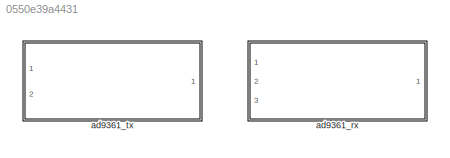
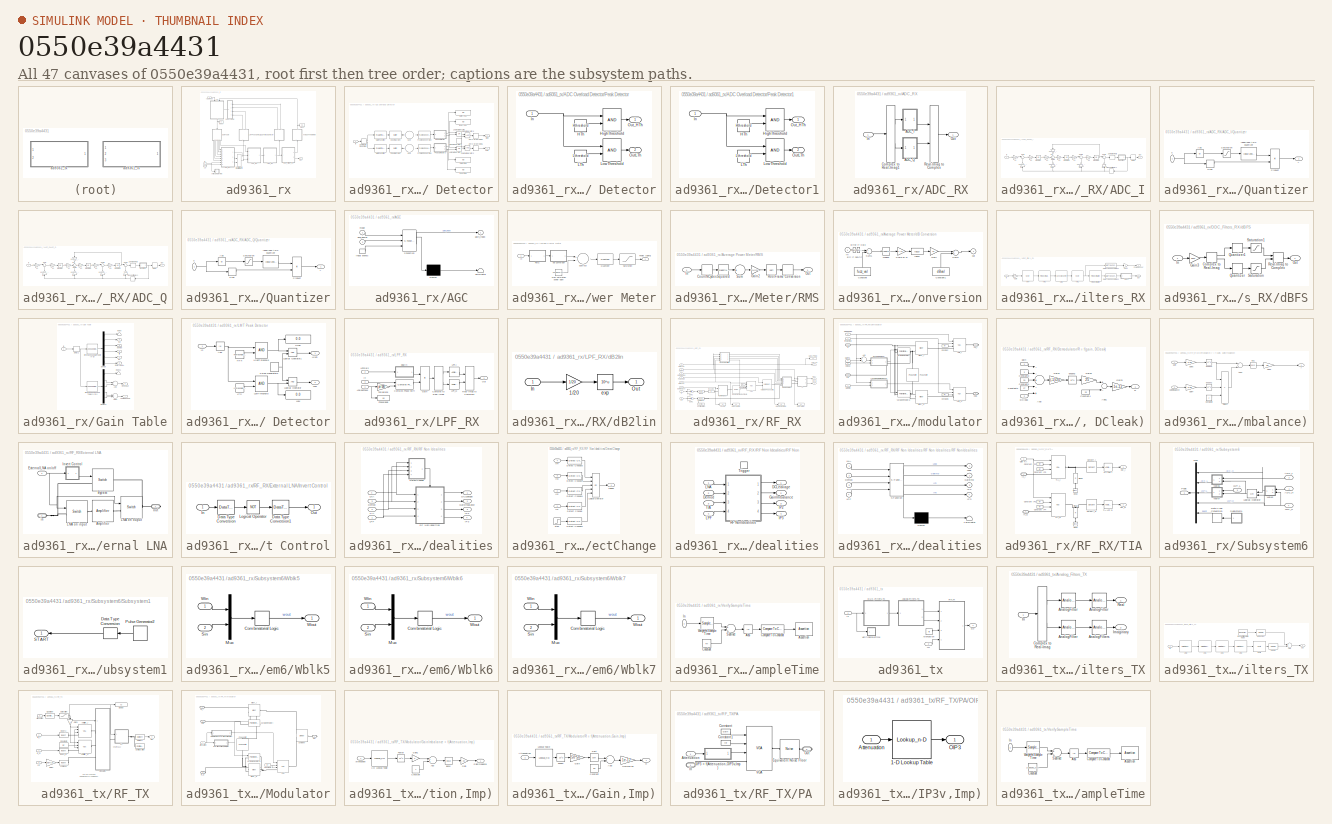
[diagram: thumbnail index - all 47 canvases of the model, root first then tree order]
MODEL slx_0550e39a4431
KIND library
CONFIG AbsTol = auto
CONFIG EnableMultiTasking = off
CONFIG FixedStep = auto
CONFIG MaxStep = auto
CONFIG MinStep = auto
CONFIG RelTol = 1e-3
CONFIG SampleTimeConstraint = Unconstrained
CONFIG Solver = VariableStepAuto
CONFIG SolverName = VariableStepAuto
CONFIG StartTime = 0.0
CONFIG StopTime = 10.0
BLOCK [SubSystem] ad9361_rx
  LoadFcn = ad9361_preload(bdroot,'rx')
  Ports = [3, 1]
  RequestExecContextInheritance = off
  UserDataPersistent = on
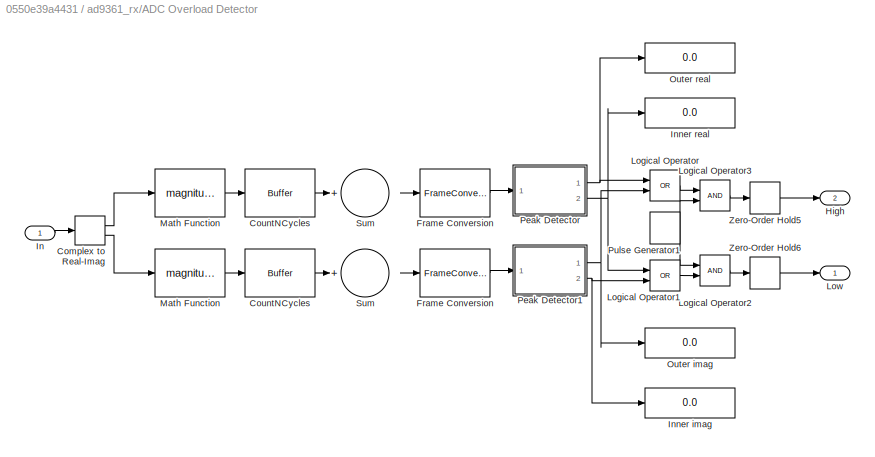
BLOCK [SubSystem] ad9361_rx/ADC Overload Detector
  Ports = [1, 2]
  RequestExecContextInheritance = off
BLOCK [ComplexToRealImag] ad9361_rx/ADC Overload Detector/Complex to Real-Imag
  Ports = [1, 2]
BLOCK [Buffer] ad9361_rx/ADC Overload Detector/CountNCycles
  N = Ncycles
BLOCK [Buffer] ad9361_rx/ADC Overload Detector/CountNCycles 
  N = Ncycles
BLOCK [FrameConversion] ad9361_rx/ADC Overload Detector/Frame Conversion
  OutFrame = Sample-based
  Ports = [1, 1]
BLOCK [FrameConversion] ad9361_rx/ADC Overload Detector/Frame Conversion 
  OutFrame = Sample-based
  Ports = [1, 1]
BLOCK [Outport] ad9361_rx/ADC Overload Detector/High
  IconDisplay = Port number
  Port = 2
BLOCK [Inport] ad9361_rx/ADC Overload Detector/In
  IconDisplay = Port number
BLOCK [Display] ad9361_rx/ADC Overload Detector/Inner imag
  Decimation = 1
  Ports = [1]
BLOCK [Display] ad9361_rx/ADC Overload Detector/Inner real
  Decimation = 1
  Ports = [1]
BLOCK [Logic] ad9361_rx/ADC Overload Detector/Logical Operator
  AllPortsSameDT = off
  Operator = OR
  OutDataTypeStr = boolean
  Ports = [2, 1]
BLOCK [Logic] ad9361_rx/ADC Overload Detector/Logical Operator1
  AllPortsSameDT = off
  Operator = OR
  OutDataTypeStr = boolean
  Ports = [2, 1]
BLOCK [Logic] ad9361_rx/ADC Overload Detector/Logical Operator2
  AllPortsSameDT = off
  OutDataTypeStr = boolean
  Ports = [2, 1]
BLOCK [Logic] ad9361_rx/ADC Overload Detector/Logical Operator3
  AllPortsSameDT = off
  OutDataTypeStr = boolean
  Ports = [2, 1]
BLOCK [Outport] ad9361_rx/ADC Overload Detector/Low
  IconDisplay = Port number
BLOCK [Math] ad9361_rx/ADC Overload Detector/Math Function
  Operator = magnitude^2
  Ports = [1, 1]
BLOCK [Math] ad9361_rx/ADC Overload Detector/Math Function 
  Operator = magnitude^2
  Ports = [1, 1]
BLOCK [Display] ad9361_rx/ADC Overload Detector/Outer imag
  Decimation = 1
  Ports = [1]
BLOCK [Display] ad9361_rx/ADC Overload Detector/Outer real
  Decimation = 1
  Ports = [1]
BLOCK [SubSystem] ad9361_rx/ADC Overload Detector/Peak Detector
  Ports = [1, 2]
  RequestExecContextInheritance = off
BLOCK [Constant] ad9361_rx/ADC Overload Detector/Peak Detector/HTh
  SampleTime = ad9361_rx_pars.Tadc*Ncycles
  Value = Hthreshold
BLOCK [RelationalOperator] ad9361_rx/ADC Overload Detector/Peak Detector/HighThreshold
  InputSameDT = off
  OutDataTypeStr = boolean
  Ports = [2, 1]
BLOCK [Inport] ad9361_rx/ADC Overload Detector/Peak Detector/In
  IconDisplay = Port number
BLOCK [Constant] ad9361_rx/ADC Overload Detector/Peak Detector/LTh
  SampleTime = ad9361_rx_pars.Tadc*Ncycles
  Value = Lthreshold
BLOCK [RelationalOperator] ad9361_rx/ADC Overload Detector/Peak Detector/LowThreshold
  InputSameDT = off
  OutDataTypeStr = boolean
  Ports = [2, 1]
BLOCK [Outport] ad9361_rx/ADC Overload Detector/Peak Detector/OutLTh
  IconDisplay = Port number
  Port = 2
BLOCK [Outport] ad9361_rx/ADC Overload Detector/Peak Detector/Out_HTh
  IconDisplay = Port number
BLOCK [SubSystem] ad9361_rx/ADC Overload Detector/Peak Detector1
  Ports = [1, 2]
  RequestExecContextInheritance = off
BLOCK [Constant] ad9361_rx/ADC Overload Detector/Peak Detector1/HTh
  SampleTime = ad9361_rx_pars.Tadc*Ncycles
  Value = Hthreshold
BLOCK [RelationalOperator] ad9361_rx/ADC Overload Detector/Peak Detector1/HighThreshold
  InputSameDT = off
  OutDataTypeStr = boolean
  Ports = [2, 1]
BLOCK [Inport] ad9361_rx/ADC Overload Detector/Peak Detector1/In
  IconDisplay = Port number
BLOCK [Constant] ad9361_rx/ADC Overload Detector/Peak Detector1/LTh
  SampleTime = ad9361_rx_pars.Tadc*Ncycles
  Value = Lthreshold
BLOCK [RelationalOperator] ad9361_rx/ADC Overload Detector/Peak Detector1/LowThreshold
  InputSameDT = off
  OutDataTypeStr = boolean
  Ports = [2, 1]
BLOCK [Outport] ad9361_rx/ADC Overload Detector/Peak Detector1/OutLTh
  IconDisplay = Port number
  Port = 2
BLOCK [Outport] ad9361_rx/ADC Overload Detector/Peak Detector1/Out_HTh
  IconDisplay = Port number
BLOCK [DiscretePulseGenerator] ad9361_rx/ADC Overload Detector/Pulse Generator1
  Ports = [0, 1]
  SampleTime = ad9361_rx_pars.Tadc*Ncycles
BLOCK [Sum] ad9361_rx/ADC Overload Detector/Sum
  InputSameDT = off
  Inputs = +
  OutDataTypeStr = Inherit: Inherit via internal rule
  Ports = [1, 1]
  SaturateOnIntegerOverflow = off
BLOCK [Sum] ad9361_rx/ADC Overload Detector/Sum 
  InputSameDT = off
  Inputs = +
  OutDataTypeStr = Inherit: Inherit via internal rule
  Ports = [1, 1]
  SaturateOnIntegerOverflow = off
BLOCK [ZeroOrderHold] ad9361_rx/ADC Overload Detector/Zero-Order Hold5
  SampleTime = Trf
BLOCK [ZeroOrderHold] ad9361_rx/ADC Overload Detector/Zero-Order Hold6
  SampleTime = Trf
BLOCK [SubSystem] ad9361_rx/ADC_RX
  Ports = [1, 1]
  RequestExecContextInheritance = off
BLOCK [SubSystem] ad9361_rx/ADC_RX/ADC_I
  Ports = [1, 1]
  RequestExecContextInheritance = off
BLOCK [Delay] ad9361_rx/ADC_RX/ADC_I/Delay
  DelayLength = 1
  InputPortMap = u0
  Ports = [1, 1]
BLOCK [Inport] ad9361_rx/ADC_RX/ADC_I/In
  IconDisplay = Port number
BLOCK [Integrator] ad9361_rx/ADC_RX/ADC_I/Integrator
  LimitOutput = on
  LowerSaturationLimit = -0.9
  Ports = [1, 1]
  UpperSaturationLimit = 0.9
BLOCK [Integrator] ad9361_rx/ADC_RX/ADC_I/Integrator1
  LimitOutput = on
  LowerSaturationLimit = -0.9
  Ports = [1, 1]
  UpperSaturationLimit = 0.9
BLOCK [Integrator] ad9361_rx/ADC_RX/ADC_I/Integrator2
  LimitOutput = on
  LowerSaturationLimit = -0.9
  Ports = [1, 1]
  UpperSaturationLimit = 0.9
BLOCK [Outport] ad9361_rx/ADC_RX/ADC_I/Out
  IconDisplay = Port number
BLOCK [SubSystem] ad9361_rx/ADC_RX/ADC_I/Quantizer
  Ports = [1, 1]
  RequestExecContextInheritance = off
BLOCK [Abs] ad9361_rx/ADC_RX/ADC_I/Quantizer/Abs
  SaturateOnIntegerOverflow = off
BLOCK [Reference] ad9361_rx/ADC_RX/ADC_I/Quantizer/Idealized ADC quantizer  REF=simulink_extras/Additional
Discrete/Idealized ADC quantizer
  AttributesFormatString = (settings: %<NumberOfConverterBits>-bit converter\nVmin: %<Vmin>, Vmax: %<Vmax>)
  Ports = [1, 1]
  SourceBlock = simulink_extras/Additional\nDiscrete/Idealized ADC quantizer
  SourceProductBaseCode = SL
  SourceProductName = Simulink
  SourceType = IdealADC
BLOCK [Product] ad9361_rx/ADC_RX/ADC_I/Quantizer/Product
  InputSameDT = off
  OutDataTypeStr = Inherit: Inherit via internal rule
  Ports = [2, 1]
  RndMeth = Floor
  SaturateOnIntegerOverflow = off
BLOCK [Saturate] ad9361_rx/ADC_RX/ADC_I/Quantizer/Saturation
  InputPortMap = u0
  Ports = [1, 1]
  UpperLimit = 0.41
BLOCK [Signum] ad9361_rx/ADC_RX/ADC_I/Quantizer/Sign
BLOCK [Inport] ad9361_rx/ADC_RX/ADC_I/Quantizer/u
  IconDisplay = Port number
BLOCK [Outport] ad9361_rx/ADC_RX/ADC_I/Quantizer/y
  IconDisplay = Port number
BLOCK [Sum] ad9361_rx/ADC_RX/ADC_I/Sum
  IconShape = round
  InputSameDT = off
  Inputs = |+-
  OutDataTypeStr = Inherit: Inherit via internal rule
  Ports = [2, 1]
  SaturateOnIntegerOverflow = off
BLOCK [Sum] ad9361_rx/ADC_RX/ADC_I/Sum1
  IconShape = round
  InputSameDT = off
  Inputs = |+-
  OutDataTypeStr = Inherit: Inherit via internal rule
  Ports = [2, 1]
  SaturateOnIntegerOverflow = off
BLOCK [Sum] ad9361_rx/ADC_RX/ADC_I/Sum4
  IconShape = round
  InputSameDT = off
  Inputs = -+-
  OutDataTypeStr = Inherit: Inherit via internal rule
  Ports = [3, 1]
  SaturateOnIntegerOverflow = off
BLOCK [Sum] ad9361_rx/ADC_RX/ADC_I/Sum5
  IconShape = round
  InputSameDT = off
  Inputs = |+-
  OutDataTypeStr = Inherit: Inherit via internal rule
  Ports = [2, 1]
  SaturateOnIntegerOverflow = off
BLOCK [TransportDelay] ad9361_rx/ADC_RX/ADC_I/Transport Delay1
  DelayTime = ad9361_rx_pars.Tadc/2
  Ports = [1, 1]
BLOCK [ZeroOrderHold] ad9361_rx/ADC_RX/ADC_I/Zero-Order Hold
  SampleTime = ad9361_rx_pars.Tadc
BLOCK [Gain] ad9361_rx/ADC_RX/ADC_I/a1
  Gain = ad9361_rx_pars.BW_adc/(5e3*640e6)
  OutDataTypeStr = Inherit: Inherit via internal rule
  ParamDataTypeStr = Inherit: Inherit via internal rule
  SaturateOnIntegerOverflow = off
BLOCK [Gain] ad9361_rx/ADC_RX/ADC_I/a2
  Gain = ad9361_rx_pars.BW_adc/(5.2e3*640e6)
  OutDataTypeStr = Inherit: Inherit via internal rule
  ParamDataTypeStr = Inherit: Inherit via internal rule
  SaturateOnIntegerOverflow = off
BLOCK [Gain] ad9361_rx/ADC_RX/ADC_I/a3
  Gain = ad9361_rx_pars.BW_adc/(5e3*640e6)
  OutDataTypeStr = Inherit: Inherit via internal rule
  ParamDataTypeStr = Inherit: Inherit via internal rule
  SaturateOnIntegerOverflow = off
BLOCK [Gain] ad9361_rx/ADC_RX/ADC_I/b2
  Gain = ad9361_rx_pars.BW_adc*1024/(4*((ad9361_rx_pars.BW_adc/(2*ad9361_rx_pars.Fpass))^2)*108e3*640e6)
  OutDataTypeStr = Inherit: Inherit via internal rule
  ParamDataTypeStr = Inherit: Inherit via internal rule
  SaturateOnIntegerOverflow = off
BLOCK [Gain] ad9361_rx/ADC_RX/ADC_I/d1
  Gain = 1/1040e-15
  OutDataTypeStr = Inherit: Inherit via internal rule
  ParamDataTypeStr = Inherit: Inherit via internal rule
  SaturateOnIntegerOverflow = off
BLOCK [Gain] ad9361_rx/ADC_RX/ADC_I/d2
  Gain = 1/536e-15
  OutDataTypeStr = Inherit: Inherit via internal rule
  ParamDataTypeStr = Inherit: Inherit via internal rule
  SaturateOnIntegerOverflow = off
BLOCK [Gain] ad9361_rx/ADC_RX/ADC_I/d3
  Gain = 1/281e-15
  OutDataTypeStr = Inherit: Inherit via internal rule
  ParamDataTypeStr = Inherit: Inherit via internal rule
  SaturateOnIntegerOverflow = off
BLOCK [Gain] ad9361_rx/ADC_RX/ADC_I/k1
  Gain = ad9361_rx_pars.BW_adc*32e-6/640e6
  OutDataTypeStr = Inherit: Inherit via internal rule
  ParamDataTypeStr = Inherit: Inherit via internal rule
  SaturateOnIntegerOverflow = off
BLOCK [Gain] ad9361_rx/ADC_RX/ADC_I/k2
  Gain = ad9361_rx_pars.BW_adc*30.3e-6/640e6
  OutDataTypeStr = Inherit: Inherit via internal rule
  ParamDataTypeStr = Inherit: Inherit via internal rule
  SaturateOnIntegerOverflow = off
BLOCK [Gain] ad9361_rx/ADC_RX/ADC_I/k3
  Gain = ad9361_rx_pars.BW_adc*30.3e-6/640e6
  OutDataTypeStr = Inherit: Inherit via internal rule
  ParamDataTypeStr = Inherit: Inherit via internal rule
  SaturateOnIntegerOverflow = off
BLOCK [Gain] ad9361_rx/ADC_RX/ADC_I/k4
  Gain = 72e-3
  OutDataTypeStr = Inherit: Inherit via internal rule
  ParamDataTypeStr = Inherit: Inherit via internal rule
  SaturateOnIntegerOverflow = off
BLOCK [SubSystem] ad9361_rx/ADC_RX/ADC_Q
  Ports = [1, 1]
  RequestExecContextInheritance = off
BLOCK [Delay] ad9361_rx/ADC_RX/ADC_Q/Delay
  DelayLength = 1
  InputPortMap = u0
  Ports = [1, 1]
BLOCK [Inport] ad9361_rx/ADC_RX/ADC_Q/In
  IconDisplay = Port number
BLOCK [Integrator] ad9361_rx/ADC_RX/ADC_Q/Integrator
  LimitOutput = on
  LowerSaturationLimit = -0.9
  Ports = [1, 1]
  UpperSaturationLimit = 0.9
BLOCK [Integrator] ad9361_rx/ADC_RX/ADC_Q/Integrator1
  LimitOutput = on
  LowerSaturationLimit = -0.9
  Ports = [1, 1]
  UpperSaturationLimit = 0.9
BLOCK [Integrator] ad9361_rx/ADC_RX/ADC_Q/Integrator2
  LimitOutput = on
  LowerSaturationLimit = -0.9
  Ports = [1, 1]
  UpperSaturationLimit = 0.9
BLOCK [Outport] ad9361_rx/ADC_RX/ADC_Q/Out
  IconDisplay = Port number
BLOCK [SubSystem] ad9361_rx/ADC_RX/ADC_Q/Quantizer
  Ports = [1, 1]
  RequestExecContextInheritance = off
BLOCK [Abs] ad9361_rx/ADC_RX/ADC_Q/Quantizer/Abs
  SaturateOnIntegerOverflow = off
BLOCK [Reference] ad9361_rx/ADC_RX/ADC_Q/Quantizer/Idealized ADC quantizer  REF=simulink_extras/Additional
Discrete/Idealized ADC quantizer
  AttributesFormatString = (settings: %<NumberOfConverterBits>-bit converter\nVmin: %<Vmin>, Vmax: %<Vmax>)
  Ports = [1, 1]
  SourceBlock = simulink_extras/Additional\nDiscrete/Idealized ADC quantizer
  SourceProductBaseCode = SL
  SourceProductName = Simulink
  SourceType = IdealADC
BLOCK [Product] ad9361_rx/ADC_RX/ADC_Q/Quantizer/Product
  InputSameDT = off
  OutDataTypeStr = Inherit: Inherit via internal rule
  Ports = [2, 1]
  RndMeth = Floor
  SaturateOnIntegerOverflow = off
BLOCK [Saturate] ad9361_rx/ADC_RX/ADC_Q/Quantizer/Saturation
  InputPortMap = u0
  Ports = [1, 1]
  UpperLimit = 0.41
BLOCK [Signum] ad9361_rx/ADC_RX/ADC_Q/Quantizer/Sign
BLOCK [Inport] ad9361_rx/ADC_RX/ADC_Q/Quantizer/u
  IconDisplay = Port number
BLOCK [Outport] ad9361_rx/ADC_RX/ADC_Q/Quantizer/y
  IconDisplay = Port number
BLOCK [Sum] ad9361_rx/ADC_RX/ADC_Q/Sum
  IconShape = round
  InputSameDT = off
  Inputs = |+-
  OutDataTypeStr = Inherit: Inherit via internal rule
  Ports = [2, 1]
  SaturateOnIntegerOverflow = off
BLOCK [Sum] ad9361_rx/ADC_RX/ADC_Q/Sum1
  IconShape = round
  InputSameDT = off
  Inputs = |+-
  OutDataTypeStr = Inherit: Inherit via internal rule
  Ports = [2, 1]
  SaturateOnIntegerOverflow = off
BLOCK [Sum] ad9361_rx/ADC_RX/ADC_Q/Sum4
  IconShape = round
  InputSameDT = off
  Inputs = -+-
  OutDataTypeStr = Inherit: Inherit via internal rule
  Ports = [3, 1]
  SaturateOnIntegerOverflow = off
BLOCK [Sum] ad9361_rx/ADC_RX/ADC_Q/Sum5
  IconShape = round
  InputSameDT = off
  Inputs = |+-
  OutDataTypeStr = Inherit: Inherit via internal rule
  Ports = [2, 1]
  SaturateOnIntegerOverflow = off
BLOCK [TransportDelay] ad9361_rx/ADC_RX/ADC_Q/Transport Delay1
  DelayTime = ad9361_rx_pars.Tadc/2
  Ports = [1, 1]
BLOCK [ZeroOrderHold] ad9361_rx/ADC_RX/ADC_Q/Zero-Order Hold
  SampleTime = ad9361_rx_pars.Tadc
BLOCK [Gain] ad9361_rx/ADC_RX/ADC_Q/a1
  Gain = ad9361_rx_pars.BW_adc/(5e3*640e6)
  OutDataTypeStr = Inherit: Inherit via internal rule
  ParamDataTypeStr = Inherit: Inherit via internal rule
  SaturateOnIntegerOverflow = off
BLOCK [Gain] ad9361_rx/ADC_RX/ADC_Q/a2
  Gain = ad9361_rx_pars.BW_adc/(5.2e3*640e6)
  OutDataTypeStr = Inherit: Inherit via internal rule
  ParamDataTypeStr = Inherit: Inherit via internal rule
  SaturateOnIntegerOverflow = off
BLOCK [Gain] ad9361_rx/ADC_RX/ADC_Q/a3
  Gain = ad9361_rx_pars.BW_adc/(5e3*640e6)
  OutDataTypeStr = Inherit: Inherit via internal rule
  ParamDataTypeStr = Inherit: Inherit via internal rule
  SaturateOnIntegerOverflow = off
BLOCK [Gain] ad9361_rx/ADC_RX/ADC_Q/b2
  Gain = ad9361_rx_pars.BW_adc*1024/(4*((ad9361_rx_pars.BW_adc/(2*ad9361_rx_pars.Fpass))^2)*108e3*640e6)
  OutDataTypeStr = Inherit: Inherit via internal rule
  ParamDataTypeStr = Inherit: Inherit via internal rule
  SaturateOnIntegerOverflow = off
BLOCK [Gain] ad9361_rx/ADC_RX/ADC_Q/d1
  Gain = 1/1040e-15
  OutDataTypeStr = Inherit: Inherit via internal rule
  ParamDataTypeStr = Inherit: Inherit via internal rule
  SaturateOnIntegerOverflow = off
BLOCK [Gain] ad9361_rx/ADC_RX/ADC_Q/d2
  Gain = 1/536e-15
  OutDataTypeStr = Inherit: Inherit via internal rule
  ParamDataTypeStr = Inherit: Inherit via internal rule
  SaturateOnIntegerOverflow = off
BLOCK [Gain] ad9361_rx/ADC_RX/ADC_Q/d3
  Gain = 1/281e-15
  OutDataTypeStr = Inherit: Inherit via internal rule
  ParamDataTypeStr = Inherit: Inherit via internal rule
  SaturateOnIntegerOverflow = off
BLOCK [Gain] ad9361_rx/ADC_RX/ADC_Q/k1
  Gain = ad9361_rx_pars.BW_adc*32e-6/640e6
  OutDataTypeStr = Inherit: Inherit via internal rule
  ParamDataTypeStr = Inherit: Inherit via internal rule
  SaturateOnIntegerOverflow = off
BLOCK [Gain] ad9361_rx/ADC_RX/ADC_Q/k2
  Gain = ad9361_rx_pars.BW_adc*30.3e-6/640e6
  OutDataTypeStr = Inherit: Inherit via internal rule
  ParamDataTypeStr = Inherit: Inherit via internal rule
  SaturateOnIntegerOverflow = off
BLOCK [Gain] ad9361_rx/ADC_RX/ADC_Q/k3
  Gain = ad9361_rx_pars.BW_adc*30.3e-6/640e6
  OutDataTypeStr = Inherit: Inherit via internal rule
  ParamDataTypeStr = Inherit: Inherit via internal rule
  SaturateOnIntegerOverflow = off
BLOCK [Gain] ad9361_rx/ADC_RX/ADC_Q/k4
  Gain = 72e-3
  OutDataTypeStr = Inherit: Inherit via internal rule
  ParamDataTypeStr = Inherit: Inherit via internal rule
  SaturateOnIntegerOverflow = off
BLOCK [ComplexToRealImag] ad9361_rx/ADC_RX/Complex to Real-Imag1
  Ports = [1, 2]
BLOCK [Inport] ad9361_rx/ADC_RX/In
  IconDisplay = Port number
BLOCK [Outport] ad9361_rx/ADC_RX/Out
  IconDisplay = Port number
BLOCK [RealImagToComplex] ad9361_rx/ADC_RX/Real-Imag to Complex
  Ports = [2, 1]
BLOCK [SubSystem] ad9361_rx/AGC
  ErrorFcn = Stateflow.Translate.translate
  PermitHierarchicalResolution = ExplicitOnly
  Ports = [2, 1, 0, 1]
  RequestExecContextInheritance = off
  SFBlockType = Chart
  TreatAsAtomicUnit = on
BLOCK [Demux] ad9361_rx/AGC/ Demux 
  Outputs = 1
  Ports = [1, 1]
BLOCK [S-Function] ad9361_rx/AGC/ SFunction 
  EnableBusSupport = off
  FunctionName = sf_sfun
  Parameters = ADC_G_dec_fast,AGC_G_dec_fast,AGC_G_dec_slow,AGC_G_inc_fast,AGC_G_inc_slow,AGC_attack_delay,AGC_lock_level,C,DecPowerMeasDuration,EnableGainIncAfterLock,EnableIncrGain,EnergyDetectCount,EnergyLost,FIR_Ts,GainLockExitCount,GainOffset,GainReset,IncrTime,LMT_G_dec_fast,LowPower,ManualGainIndex,Max_Increase,N_ADC_H,N_LMT_H,Overrange,PT_H,PT_HH,PT_L,PT_LL,PeakOverLoadWait,PostLockStepSize,PowerMeasDura...<+44ch>
  PortCounts = [3 2]
  Ports = [3, 2]
  SFcnIsStateOwnerBlock = off
  SFunctionDeploymentMode = off
  Tag = Stateflow S-Function adi_ad9361_models 5
BLOCK [Terminator] ad9361_rx/AGC/ Terminator 
BLOCK [Inport] ad9361_rx/AGC/avg_power
  IconDisplay = Port number
  Port = 2
BLOCK [Outport] ad9361_rx/AGC/gain_index
  IconDisplay = Port number
BLOCK [TriggerPort] ad9361_rx/AGC/input events
  Ports = [0, 1]
  ShowOutputPort = on
  StatesWhenEnabling = held
  TriggerType = either
  VariantControl = Variant
BLOCK [Inport] ad9361_rx/AGC/mode
  IconDisplay = Port number
BLOCK [Inport] ad9361_rx/AGCMode
  IconDisplay = Port number
  Port = 3
BLOCK [SubSystem] ad9361_rx/Average Power Meter
  Ports = [1, 1]
  RequestExecContextInheritance = off
BLOCK [Inport] ad9361_rx/Average Power Meter/In
  IconDisplay = Port number
BLOCK [Constant] ad9361_rx/Average Power Meter/Max saturation power dBm
  Value = 20*log10(4)+30
BLOCK [Outport] ad9361_rx/Average Power Meter/Power [dBFS]
  IconDisplay = Port number
BLOCK [Quantizer] ad9361_rx/Average Power Meter/Quantizer
BLOCK [SubSystem] ad9361_rx/Average Power Meter/RMS
  Ports = [1, 1]
  RequestExecContextInheritance = off
BLOCK [Buffer] ad9361_rx/Average Power Meter/RMS/CountNCycles
  N = Ncycles
BLOCK [FrameConversion] ad9361_rx/Average Power Meter/RMS/Frame Conversion
  OutFrame = Sample-based
  Ports = [1, 1]
BLOCK [Gain] ad9361_rx/Average Power Meter/RMS/Gain2
  Gain = 1/Ncycles
  OutDataTypeStr = Inherit: Inherit via internal rule
  ParamDataTypeStr = Inherit: Inherit via internal rule
  SaturateOnIntegerOverflow = off
BLOCK [Inport] ad9361_rx/Average Power Meter/RMS/In
  IconDisplay = Port number
BLOCK [Outport] ad9361_rx/Average Power Meter/RMS/Out
  IconDisplay = Port number
BLOCK [Sqrt] ad9361_rx/Average Power Meter/RMS/Root
BLOCK [Math] ad9361_rx/Average Power Meter/RMS/Squared
  Operator = magnitude^2
  Ports = [1, 1]
BLOCK [Sum] ad9361_rx/Average Power Meter/RMS/Sum
  InputSameDT = off
  Inputs = +
  OutDataTypeStr = Inherit: Inherit via internal rule
  Ports = [1, 1]
  SaturateOnIntegerOverflow = off
BLOCK [Saturate] ad9361_rx/Average Power Meter/Saturation
  InputPortMap = u0
  LowerLimit = -63.5
  Ports = [1, 1]
  UpperLimit = 0
BLOCK [Sum] ad9361_rx/Average Power Meter/Subtract
  InputSameDT = off
  Inputs = +-
  OutDataTypeStr = Inherit: Inherit via internal rule
  Ports = [2, 1]
  SaturateOnIntegerOverflow = off
BLOCK [SubSystem] ad9361_rx/Average Power Meter/dB Conversion
  Ports = [1, 1]
  RequestExecContextInheritance = off
BLOCK [Constant] ad9361_rx/Average Power Meter/dB Conversion/Constant
  OutDataTypeStr = Inherit: Inherit via back propagation
  Value = fuzz_val
BLOCK [Constant] ad9361_rx/Average Power Meter/dB Conversion/Constant1
  OutDataTypeStr = Inherit: Inherit via back propagation
  Value = dBval
BLOCK [Reference] ad9361_rx/Average Power Meter/dB Conversion/Err if non-flt  REF=dspsigattribs/Check Signal
Attributes
  Ports = [1, 1]
  SourceBlock = dspsigattribs/Check Signal\nAttributes
  SourceProductBaseCode = DS
  SourceProductName = DSP System Toolbox
  SourceType = Check Signal Attributes
BLOCK [Reference] ad9361_rx/Average Power Meter/dB Conversion/Error if Cplx  REF=dspsigattribs/Check Signal
Attributes
  Ports = [1, 1]
  SourceBlock = dspsigattribs/Check Signal\nAttributes
  SourceProductBaseCode = DS
  SourceProductName = DSP System Toolbox
  SourceType = Check Signal Attributes
BLOCK [Gain] ad9361_rx/Average Power Meter/dB Conversion/Gain
  Gain = 10
BLOCK [Math] ad9361_rx/Average Power Meter/dB Conversion/Magsq
  Operator = magnitude^2
  Ports = [1, 1]
BLOCK [Gain] ad9361_rx/Average Power Meter/dB Conversion/Scale by R
  Gain = 1./R
BLOCK [Sum] ad9361_rx/Average Power Meter/dB Conversion/Sum1
  Ports = [2, 1]
BLOCK [Sum] ad9361_rx/Average Power Meter/dB Conversion/Sum2
  Ports = [2, 1]
BLOCK [Inport] ad9361_rx/Average Power Meter/dB Conversion/in
  IconDisplay = Port number
BLOCK [Math] ad9361_rx/Average Power Meter/dB Conversion/log10
  Operator = log10
  Ports = [1, 1]
BLOCK [Outport] ad9361_rx/Average Power Meter/dB Conversion/out
  IconDisplay = Port number
  InitialOutput = 0
BLOCK [SubSystem] ad9361_rx/DDC_Filters_RX
  Ports = [1, 2]
  RequestExecContextInheritance = off
BLOCK [DataTypeConversion] ad9361_rx/DDC_Filters_RX/Data Type Conversion1
  OutDataTypeStr = double
  RndMeth = Floor
  SaturateOnIntegerOverflow = off
BLOCK [DataTypeConversion] ad9361_rx/DDC_Filters_RX/Data Type Conversion2
  OutDataTypeStr = double
  RndMeth = Floor
  SaturateOnIntegerOverflow = off
BLOCK [Reference] ad9361_rx/DDC_Filters_RX/FIR Decimation  REF=dspmlti4/FIR
Decimation
  Ports = [1, 1]
  SourceBlock = dspmlti4/FIR\nDecimation
  SourceProductBaseCode = DS
  SourceProductName = DSP System Toolbox
  SourceType = FIR Decimation
  UserDataPersistent = on
BLOCK [Gain] ad9361_rx/DDC_Filters_RX/Gain
  Gain = 1/4
  OutDataTypeStr = Inherit: Inherit via internal rule
  ParamDataTypeStr = Inherit: Inherit via internal rule
  SaturateOnIntegerOverflow = off
BLOCK [Gain] ad9361_rx/DDC_Filters_RX/Gain1
  Gain = 4
  OutDataTypeStr = Inherit: Inherit via internal rule
  ParamDataTypeStr = Inherit: Inherit via internal rule
  SaturateOnIntegerOverflow = off
BLOCK [Reference] ad9361_rx/DDC_Filters_RX/Hm1  REF=ad9361_private/Short
  Ports = [1, 1]
  SourceBlock = ad9361_private/Short
  SourceProductBaseCode = SIM_RF_TRANS
  SourceProductName = RF Blockset Models for Analog Devices RF Transceivers
BLOCK [Reference] ad9361_rx/DDC_Filters_RX/Hm2  REF=ad9361_private/ConvertAndFIR
  Ports = [1, 1]
  SourceBlock = ad9361_private/ConvertAndFIR
  SourceProductBaseCode = SIM_RF_TRANS
  SourceProductName = RF Blockset Models for Analog Devices RF Transceivers
BLOCK [Reference] ad9361_rx/DDC_Filters_RX/Hm3  REF=dspmlti4/FIR
Decimation
  Ports = [1, 1]
  SourceBlock = dspmlti4/FIR\nDecimation
  SourceProductBaseCode = DS
  SourceProductName = DSP System Toolbox
  SourceType = FIR Decimation
  UserDataPersistent = on
BLOCK [Reference] ad9361_rx/DDC_Filters_RX/Hm4  REF=ad9361_private/Short
  Ports = [1, 1]
  SourceBlock = ad9361_private/Short
  SourceProductBaseCode = SIM_RF_TRANS
  SourceProductName = RF Blockset Models for Analog Devices RF Transceivers
BLOCK [Inport] ad9361_rx/DDC_Filters_RX/In
  IconDisplay = Port number
BLOCK [Outport] ad9361_rx/DDC_Filters_RX/Out
  IconDisplay = Port number
  Port = 2
BLOCK [Outport] ad9361_rx/DDC_Filters_RX/PowerSensor
  IconDisplay = Port number
BLOCK [SubSystem] ad9361_rx/DDC_Filters_RX/dBFS
  Ports = [1, 1]
  RequestExecContextInheritance = off
BLOCK [ComplexToRealImag] ad9361_rx/DDC_Filters_RX/dBFS/Complex to Real-Imag
  Ports = [1, 2]
BLOCK [Gain] ad9361_rx/DDC_Filters_RX/dBFS/Gain3
  Gain = 2047
  OutDataTypeStr = Inherit: Inherit via internal rule
  ParamDataTypeStr = Inherit: Inherit via internal rule
  SaturateOnIntegerOverflow = off
BLOCK [Inport] ad9361_rx/DDC_Filters_RX/dBFS/In
  IconDisplay = Port number
BLOCK [Outport] ad9361_rx/DDC_Filters_RX/dBFS/Out
  IconDisplay = Port number
BLOCK [Quantizer] ad9361_rx/DDC_Filters_RX/dBFS/Quantizer
  QuantizationInterval = 1
BLOCK [Quantizer] ad9361_rx/DDC_Filters_RX/dBFS/Quantizer1
  QuantizationInterval = 1
BLOCK [RealImagToComplex] ad9361_rx/DDC_Filters_RX/dBFS/Real-Imag to Complex
  Ports = [2, 1]
BLOCK [Saturate] ad9361_rx/DDC_Filters_RX/dBFS/Saturation
  InputPortMap = u0
  LowerLimit = -2048
  Ports = [1, 1]
  UpperLimit = 2047
BLOCK [Saturate] ad9361_rx/DDC_Filters_RX/dBFS/Saturation1
  InputPortMap = u0
  LowerLimit = -2048
  Ports = [1, 1]
  UpperLimit = 2047
BLOCK [SubSystem] ad9361_rx/Gain Table
  Ports = [1, 7]
  RequestExecContextInheritance = off
BLOCK [Sum] ad9361_rx/Gain Table/Add
  InputSameDT = off
  OutDataTypeStr = Inherit: Inherit via internal rule
  Ports = [2, 1]
  SaturateOnIntegerOverflow = off
BLOCK [Sum] ad9361_rx/Gain Table/Add1
  InputSameDT = off
  OutDataTypeStr = Inherit: Inherit via internal rule
  Ports = [2, 1]
  SaturateOnIntegerOverflow = off
BLOCK [Outport] ad9361_rx/Gain Table/Analog phase
  IconDisplay = Port number
  Port = 7
BLOCK [Delay] ad9361_rx/Gain Table/Delay1
  DelayLength = 1
  InitialCondition = 76
  InputPortMap = u0
  Ports = [1, 1]
  SampleTime = Trf
BLOCK [Demux] ad9361_rx/Gain Table/Demux
  DisplayOption = bar
  Outputs = 6
  Ports = [1, 6]
BLOCK [Demux] ad9361_rx/Gain Table/Demux1
  DisplayOption = bar
  Outputs = 5
  Ports = [1, 5]
BLOCK [LookupNDDirect] ad9361_rx/Gain Table/Direct Lookup Gain Table (n-D)
  InputsSelectThisObjectFromTable = Vector
  Ports = [1, 1]
  Table = ADIGainTable'
BLOCK [LookupNDDirect] ad9361_rx/Gain Table/Direct Lookup Phase Table (n-D)1
  InputsSelectThisObjectFromTable = Vector
  Ports = [1, 1]
  Table = ADIPhaseTable'
BLOCK [Outport] ad9361_rx/Gain Table/External LNA
  IconDisplay = Port number
  Port = 5
BLOCK [Inport] ad9361_rx/Gain Table/In
  IconDisplay = Port number
BLOCK [Terminator] ad9361_rx/Gain Table/Index
BLOCK [Terminator] ad9361_rx/Gain Table/Index1
BLOCK [Outport] ad9361_rx/Gain Table/RF phase
  IconDisplay = Port number
  Port = 6
BLOCK [Outport] ad9361_rx/Gain Table/demod
  IconDisplay = Port number
  Port = 3
BLOCK [Outport] ad9361_rx/Gain Table/lna
  IconDisplay = Port number
  Port = 4
BLOCK [Outport] ad9361_rx/Gain Table/lpf
  IconDisplay = Port number
BLOCK [Outport] ad9361_rx/Gain Table/tia
  IconDisplay = Port number
  Port = 2
BLOCK [Inport] ad9361_rx/In
  IconDisplay = Port number
BLOCK [Display] ad9361_rx/Index 
  Decimation = 1
  Ports = [1]
BLOCK [SubSystem] ad9361_rx/LMT Peak Detector
  Ports = [1, 2]
  RequestExecContextInheritance = off
BLOCK [Abs] ad9361_rx/LMT Peak Detector/Abs
  SaturateOnIntegerOverflow = off
BLOCK [Constant] ad9361_rx/LMT Peak Detector/HTh
  Value = HThreshold*1e-3
BLOCK [Outport] ad9361_rx/LMT Peak Detector/High
  IconDisplay = Port number
  SampleTime = Trf
BLOCK [Display] ad9361_rx/LMT Peak Detector/High 
  Decimation = 1
  Ports = [1]
BLOCK [RelationalOperator] ad9361_rx/LMT Peak Detector/HighThreshold
  InputSameDT = off
  OutDataTypeStr = boolean
  Ports = [2, 1]
BLOCK [Inport] ad9361_rx/LMT Peak Detector/In
  IconDisplay = Port number
BLOCK [Constant] ad9361_rx/LMT Peak Detector/LTh
  Value = LThreshold*1e-3
BLOCK [Logic] ad9361_rx/LMT Peak Detector/Logical Operator
  AllPortsSameDT = off
  OutDataTypeStr = boolean
  Ports = [2, 1]
BLOCK [Logic] ad9361_rx/LMT Peak Detector/Logical Operator1
  AllPortsSameDT = off
  OutDataTypeStr = boolean
  Ports = [2, 1]
BLOCK [Outport] ad9361_rx/LMT Peak Detector/Low
  IconDisplay = Port number
  Port = 2
  SampleTime = Trf
BLOCK [Display] ad9361_rx/LMT Peak Detector/Low 
  Decimation = 1
  Ports = [1]
BLOCK [RelationalOperator] ad9361_rx/LMT Peak Detector/LowThreshold
  InputSameDT = off
  OutDataTypeStr = boolean
  Ports = [2, 1]
BLOCK [DiscretePulseGenerator] ad9361_rx/LMT Peak Detector/Pulse Generator2
  Ports = [0, 1]
  SampleTime = Trf
BLOCK [Inport] ad9361_rx/LO
  IconDisplay = Port number
  Port = 2
BLOCK [SubSystem] ad9361_rx/LPF_RX
  Ports = [3, 1]
  RequestExecContextInheritance = off
BLOCK [Inport] ad9361_rx/LPF_RX/AnalogPhase
  IconDisplay = Port number
BLOCK [Reference] ad9361_rx/LPF_RX/Complex Phase Shift  REF=commutil2/Complex Phase
Shift
  Ports = [2, 1]
  SourceBlock = commutil2/Complex Phase\nShift
  SourceProductBaseCode = CM
  SourceProductName = Communications Toolbox
  SourceType = Complex Phase Shift
BLOCK [ComplexToRealImag] ad9361_rx/LPF_RX/Complex to Real-Imag
  Ports = [1, 2]
BLOCK [Product] ad9361_rx/LPF_RX/Gain
  InputSameDT = off
  OutDataTypeStr = Inherit: Inherit via internal rule
  Ports = [2, 1]
  RndMeth = Floor
  SaturateOnIntegerOverflow = off
BLOCK [Inport] ad9361_rx/LPF_RX/In
  IconDisplay = Port number
  Port = 3
BLOCK [Inport] ad9361_rx/LPF_RX/LPFGain
  IconDisplay = Port number
  Port = 2
BLOCK [Reference] ad9361_rx/LPF_RX/LPF_I  REF=dsparch4/Analog
Filter Design
  Ports = [1, 1]
  SourceBlock = dsparch4/Analog\nFilter Design
  SourceProductBaseCode = DS
  SourceProductName = DSP System Toolbox
  SourceType = Analog Filter Design
BLOCK [Reference] ad9361_rx/LPF_RX/LPF_Q   REF=dsparch4/Analog
Filter Design
  Ports = [1, 1]
  SourceBlock = dsparch4/Analog\nFilter Design
  SourceProductBaseCode = DS
  SourceProductName = DSP System Toolbox
  SourceType = Analog Filter Design
BLOCK [Outport] ad9361_rx/LPF_RX/Out
  IconDisplay = Port number
BLOCK [Display] ad9361_rx/LPF_RX/Phase[deg]
  Decimation = 1
  Ports = [1]
BLOCK [RealImagToComplex] ad9361_rx/LPF_RX/Real-Imag to Complex1
  Ports = [2, 1]
BLOCK [Gain] ad9361_rx/LPF_RX/ToRadians
  Gain = pi/180
  OutDataTypeStr = Inherit: Inherit via internal rule
  ParamDataTypeStr = Inherit: Inherit via internal rule
  SaturateOnIntegerOverflow = off
BLOCK [SubSystem] ad9361_rx/LPF_RX/dB2lin
  Ports = [1, 1]
  RequestExecContextInheritance = off
BLOCK [Gain] ad9361_rx/LPF_RX/dB2lin/1//20
  Gain = 1/20
  OutDataTypeStr = Inherit: Inherit via internal rule
  ParamDataTypeStr = Inherit: Inherit via internal rule
  SaturateOnIntegerOverflow = off
BLOCK [Inport] ad9361_rx/LPF_RX/dB2lin/In
  IconDisplay = Port number
BLOCK [Outport] ad9361_rx/LPF_RX/dB2lin/Out
  IconDisplay = Port number
BLOCK [Math] ad9361_rx/LPF_RX/dB2lin/exp
  Operator = 10^u
  Ports = [1, 1]
BLOCK [Outport] ad9361_rx/Out
  IconDisplay = Port number
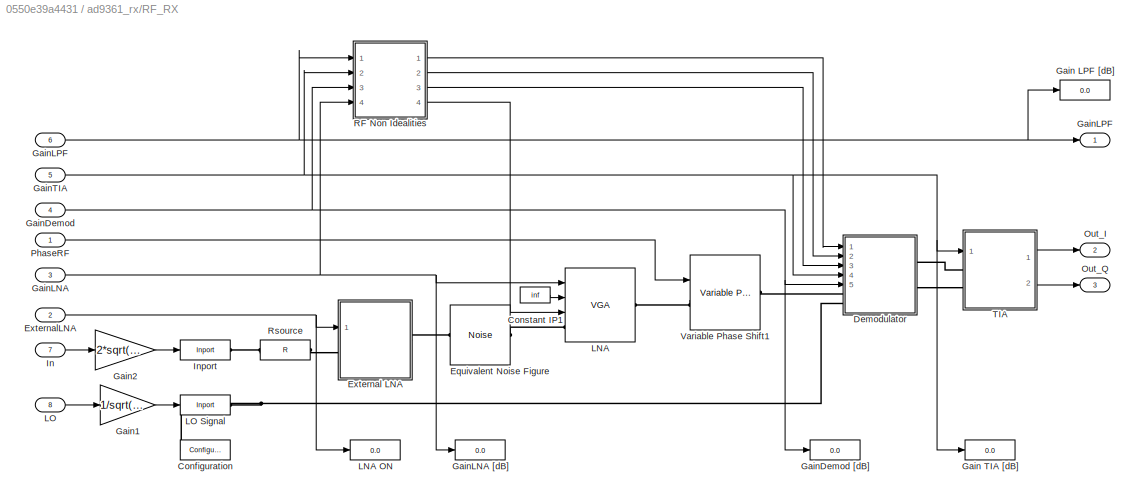
BLOCK [SubSystem] ad9361_rx/RF_RX
  Ports = [8, 3]
  RequestExecContextInheritance = off
BLOCK [Reference] ad9361_rx/RF_RX/Configuration  REF=simrfV2util1/Configuration
  Ports = [0, 0, 0, 0, 0, 1]
  SourceBlock = simrfV2util1/Configuration
  SourceProductBaseCode = RB
  SourceProductName = RF Blockset
  SourceType = Configuration
BLOCK [Constant] ad9361_rx/RF_RX/Constant IP1
  Value = inf
BLOCK [SubSystem] ad9361_rx/RF_RX/Demodulator
  Ports = [5, 0, 0, 0, 0, 2, 2]
  RequestExecContextInheritance = off
BLOCK [Sum] ad9361_rx/RF_RX/Demodulator/Add
  InputSameDT = off
  OutDataTypeStr = Inherit: Inherit via internal rule
  Ports = [2, 1]
  SaturateOnIntegerOverflow = off
BLOCK [Reference] ad9361_rx/RF_RX/Demodulator/Amp_I  REF=simrfV2elements/VGA
  Ports = [3, 0, 0, 0, 0, 1, 1]
  SourceBlock = simrfV2elements/VGA
  SourceProductBaseCode = RB
  SourceProductName = RF Blockset
  SourceType = VGA
BLOCK [Reference] ad9361_rx/RF_RX/Demodulator/Amp_Q  REF=simrfV2elements/VGA
  Ports = [3, 0, 0, 0, 0, 1, 1]
  SourceBlock = simrfV2elements/VGA
  SourceProductBaseCode = RB
  SourceProductName = RF Blockset
  SourceType = VGA
BLOCK [Constant] ad9361_rx/RF_RX/Demodulator/Constant
  Value = inf
BLOCK [Constant] ad9361_rx/RF_RX/Demodulator/Constant1
  Value = inf
BLOCK [Inport] ad9361_rx/RF_RX/Demodulator/DCleak
  IconDisplay = Port number
BLOCK [Inport] ad9361_rx/RF_RX/Demodulator/Gain Demod
  IconDisplay = Port number
  Port = 5
BLOCK [Inport] ad9361_rx/RF_RX/Demodulator/GainImb
  IconDisplay = Port number
  Port = 2
BLOCK [Inport] ad9361_rx/RF_RX/Demodulator/GainTIA
  IconDisplay = Port number
  Port = 4
BLOCK [Inport] ad9361_rx/RF_RX/Demodulator/IP2 Demod
  IconDisplay = Port number
  Port = 3
BLOCK [PMIOPort] ad9361_rx/RF_RX/Demodulator/In
  Side = Left
BLOCK [PMIOPort] ad9361_rx/RF_RX/Demodulator/LO
  Port = 4
  Side = Left
BLOCK [Reference] ad9361_rx/RF_RX/Demodulator/Mixer_I  REF=simrfV2elements/Mixer
  Ports = [0, 0, 0, 0, 0, 2, 1]
  SourceBlock = simrfV2elements/Mixer
  SourceProductBaseCode = RB
  SourceProductName = RF Blockset
  SourceType = Mixer
BLOCK [Reference] ad9361_rx/RF_RX/Demodulator/Mixer_Q  REF=simrfV2elements/Mixer
  Ports = [0, 0, 0, 0, 0, 2, 1]
  SourceBlock = simrfV2elements/Mixer
  SourceProductBaseCode = RB
  SourceProductName = RF Blockset
  SourceType = Mixer
BLOCK [PMIOPort] ad9361_rx/RF_RX/Demodulator/OutQ
  Port = 3
  Side = Right
BLOCK [PMIOPort] ad9361_rx/RF_RX/Demodulator/Out_I
  Port = 2
  Side = Right
BLOCK [Reference] ad9361_rx/RF_RX/Demodulator/Phase Shift  REF=simrfV2elements/Phase Shift
  Ports = [0, 0, 0, 0, 0, 1, 1]
  SourceBlock = simrfV2elements/Phase Shift
  SourceProductBaseCode = RB
  SourceProductName = RF Blockset
  SourceType = Phase Shift
BLOCK [SubSystem] ad9361_rx/RF_RX/Demodulator/R = f(gain, DCleak)
  Ports = [2, 1]
  RequestExecContextInheritance = off
BLOCK [Sum] ad9361_rx/RF_RX/Demodulator/R = f(gain, DCleak)/Add
  InputSameDT = off
  Inputs = --+-+
  OutDataTypeStr = Inherit: Inherit via internal rule
  Ports = [5, 1]
  SaturateOnIntegerOverflow = off
BLOCK [Sum] ad9361_rx/RF_RX/Demodulator/R = f(gain, DCleak)/Add1
  InputSameDT = off
  Inputs = +-
  OutDataTypeStr = Inherit: Inherit via internal rule
  Ports = [2, 1]
  SaturateOnIntegerOverflow = off
BLOCK [Constant] ad9361_rx/RF_RX/Demodulator/R = f(gain, DCleak)/Constant1
  Value = 20
BLOCK [Constant] ad9361_rx/RF_RX/Demodulator/R = f(gain, DCleak)/Constant2
  Value = 27
BLOCK [Constant] ad9361_rx/RF_RX/Demodulator/R = f(gain, DCleak)/Constant3
  Value = 3
BLOCK [Constant] ad9361_rx/RF_RX/Demodulator/R = f(gain, DCleak)/Constant4
  Value = 25
BLOCK [Inport] ad9361_rx/RF_RX/Demodulator/R = f(gain, DCleak)/DCleak
  IconDisplay = Port number
  Port = 2
BLOCK [Gain] ad9361_rx/RF_RX/Demodulator/R = f(gain, DCleak)/Gain1
  Gain = (-1)/20
  OutDataTypeStr = Inherit: Inherit via internal rule
  ParamDataTypeStr = Inherit: Inherit via internal rule
  SaturateOnIntegerOverflow = off
BLOCK [Gain] ad9361_rx/RF_RX/Demodulator/R = f(gain, DCleak)/Gain2
  Gain = 25
  OutDataTypeStr = Inherit: Inherit via internal rule
  ParamDataTypeStr = Inherit: Inherit via internal rule
  SaturateOnIntegerOverflow = off
BLOCK [Gain] ad9361_rx/RF_RX/Demodulator/R = f(gain, DCleak)/Gain3
  Gain = 1e-12
  OutDataTypeStr = Inherit: Inherit via internal rule
  ParamDataTypeStr = Inherit: Inherit via internal rule
  SaturateOnIntegerOverflow = off
BLOCK [Outport] ad9361_rx/RF_RX/Demodulator/R = f(gain, DCleak)/R
  IconDisplay = Port number
BLOCK [Math] ad9361_rx/RF_RX/Demodulator/R = f(gain, DCleak)/expon3
  Operator = 10^u
  Ports = [1, 1]
BLOCK [Inport] ad9361_rx/RF_RX/Demodulator/R = f(gain, DCleak)/gain
  IconDisplay = Port number
BLOCK [Reference] ad9361_rx/RF_RX/Demodulator/Variable ResistorI  REF=simrfV2junction1/Potentiometer
  Ports = [1, 0, 0, 0, 0, 1, 1]
  SourceBlock = simrfV2junction1/Potentiometer
  SourceProductBaseCode = RB
  SourceProductName = RF Blockset
  SourceType = Potentiometer
BLOCK [Reference] ad9361_rx/RF_RX/Demodulator/Variable ResistorQ  REF=simrfV2junction1/Potentiometer
  Ports = [1, 0, 0, 0, 0, 1, 1]
  SourceBlock = simrfV2junction1/Potentiometer
  SourceProductBaseCode = RB
  SourceProductName = RF Blockset
  SourceType = Potentiometer
BLOCK [SubSystem] ad9361_rx/RF_RX/Demodulator/y = f(gain, gainImbalance)
  Ports = [2, 1]
  RequestExecContextInheritance = off
BLOCK [Sum] ad9361_rx/RF_RX/Demodulator/y = f(gain, gainImbalance)/Add2
  InputSameDT = off
  OutDataTypeStr = Inherit: Inherit via internal rule
  Ports = [2, 1]
  SaturateOnIntegerOverflow = off
BLOCK [Constant] ad9361_rx/RF_RX/Demodulator/y = f(gain, gainImbalance)/Constant2
  Value = 2
BLOCK [Gain] ad9361_rx/RF_RX/Demodulator/y = f(gain, gainImbalance)/Gain4
  Gain = 1/20
  OutDataTypeStr = Inherit: Inherit via internal rule
  ParamDataTypeStr = Inherit: Inherit via internal rule
  SaturateOnIntegerOverflow = off
BLOCK [Gain] ad9361_rx/RF_RX/Demodulator/y = f(gain, gainImbalance)/Gain5
  Gain = 1/20
  OutDataTypeStr = Inherit: Inherit via internal rule
  ParamDataTypeStr = Inherit: Inherit via internal rule
  SaturateOnIntegerOverflow = off
BLOCK [Gain] ad9361_rx/RF_RX/Demodulator/y = f(gain, gainImbalance)/Gain6
  Gain = 20
  OutDataTypeStr = Inherit: Inherit via internal rule
  ParamDataTypeStr = Inherit: Inherit via internal rule
  SaturateOnIntegerOverflow = off
BLOCK [Product] ad9361_rx/RF_RX/Demodulator/y = f(gain, gainImbalance)/Times1
  InputSameDT = off
  Inputs = ***
  OutDataTypeStr = Inherit: Inherit via internal rule
  Ports = [3, 1]
  RndMeth = Floor
  SaturateOnIntegerOverflow = off
BLOCK [Math] ad9361_rx/RF_RX/Demodulator/y = f(gain, gainImbalance)/expon2
  Operator = 10^u
  Ports = [1, 1]
BLOCK [Math] ad9361_rx/RF_RX/Demodulator/y = f(gain, gainImbalance)/expon3
  Operator = 10^u
  Ports = [1, 1]
BLOCK [Inport] ad9361_rx/RF_RX/Demodulator/y = f(gain, gainImbalance)/gain
  IconDisplay = Port number
BLOCK [Inport] ad9361_rx/RF_RX/Demodulator/y = f(gain, gainImbalance)/gainImbalance
  IconDisplay = Port number
  Port = 2
BLOCK [Math] ad9361_rx/RF_RX/Demodulator/y = f(gain, gainImbalance)/log1
  Operator = log10
  Ports = [1, 1]
BLOCK [Outport] ad9361_rx/RF_RX/Demodulator/y = f(gain, gainImbalance)/y
  IconDisplay = Port number
BLOCK [Reference] ad9361_rx/RF_RX/Equivalent Noise Figure  REF=simrfV2sources1/Noise
  Ports = [0, 0, 0, 0, 0, 1, 1]
  SourceBlock = simrfV2sources1/Noise
  SourceProductBaseCode = RB
  SourceProductName = RF Blockset
  SourceType = Noise Source
BLOCK [SubSystem] ad9361_rx/RF_RX/External LNA
  Ports = [1, 0, 0, 0, 0, 1, 1]
  RequestExecContextInheritance = off
BLOCK [Reference] ad9361_rx/RF_RX/External LNA/Amplifier  REF=simrfV2elements/Amplifier
  Ports = [0, 0, 0, 0, 0, 1, 1]
  SourceBlock = simrfV2elements/Amplifier
  SourceProductBaseCode = RB
  SourceProductName = RF Blockset
  SourceType = Amplifier
BLOCK [Reference] ad9361_rx/RF_RX/External LNA/Bypass  REF=simrfV2junction1/Switch
  Ports = [1, 0, 0, 0, 0, 1, 1]
  SourceBlock = simrfV2junction1/Switch
  SourceProductBaseCode = RB
  SourceProductName = RF Blockset
  SourceType = Switch Two Terminal
BLOCK [Inport] ad9361_rx/RF_RX/External LNA/ExternalLNA on//off
  IconDisplay = Port number
BLOCK [SubSystem] ad9361_rx/RF_RX/External LNA/Invert Control
  Ports = [1, 1]
  RequestExecContextInheritance = off
BLOCK [DataTypeConversion] ad9361_rx/RF_RX/External LNA/Invert Control/Data Type Conversion
  OutDataTypeStr = boolean
  RndMeth = Floor
  SaturateOnIntegerOverflow = off
BLOCK [DataTypeConversion] ad9361_rx/RF_RX/External LNA/Invert Control/Data Type Conversion1
  OutDataTypeStr = double
  RndMeth = Floor
  SaturateOnIntegerOverflow = off
BLOCK [Inport] ad9361_rx/RF_RX/External LNA/Invert Control/In
  IconDisplay = Port number
BLOCK [Logic] ad9361_rx/RF_RX/External LNA/Invert Control/Logical Operator
  AllPortsSameDT = off
  Operator = NOT
  OutDataTypeStr = boolean
  Ports = [1, 1]
BLOCK [Outport] ad9361_rx/RF_RX/External LNA/Invert Control/Out
  IconDisplay = Port number
BLOCK [Reference] ad9361_rx/RF_RX/External LNA/LNA on input  REF=simrfV2junction1/Switch
  Ports = [1, 0, 0, 0, 0, 1, 1]
  SourceBlock = simrfV2junction1/Switch
  SourceProductBaseCode = RB
  SourceProductName = RF Blockset
  SourceType = Switch Two Terminal
BLOCK [Reference] ad9361_rx/RF_RX/External LNA/LNA on ouput  REF=simrfV2junction1/Switch
  Ports = [1, 0, 0, 0, 0, 1, 1]
  SourceBlock = simrfV2junction1/Switch
  SourceProductBaseCode = RB
  SourceProductName = RF Blockset
  SourceType = Switch Two Terminal
BLOCK [PMIOPort] ad9361_rx/RF_RX/External LNA/in
  Side = Left
BLOCK [PMIOPort] ad9361_rx/RF_RX/External LNA/out
  Port = 2
  Side = Right
BLOCK [Inport] ad9361_rx/RF_RX/ExternalLNA
  IconDisplay = Port number
  Port = 2
BLOCK [Display] ad9361_rx/RF_RX/Gain LPF [dB]
  Decimation = 1
  Ports = [1]
BLOCK [Display] ad9361_rx/RF_RX/Gain TIA [dB]
  Decimation = 1
  Ports = [1]
BLOCK [Gain] ad9361_rx/RF_RX/Gain1
  Gain = 1/sqrt(2)
  OutDataTypeStr = Inherit: Inherit via internal rule
  ParamDataTypeStr = Inherit: Inherit via internal rule
  SaturateOnIntegerOverflow = off
BLOCK [Gain] ad9361_rx/RF_RX/Gain2
  Gain = 2*sqrt(2)
  OutDataTypeStr = Inherit: Inherit via internal rule
  ParamDataTypeStr = Inherit: Inherit via internal rule
  SaturateOnIntegerOverflow = off
BLOCK [Inport] ad9361_rx/RF_RX/GainDemod
  IconDisplay = Port number
  Port = 4
BLOCK [Display] ad9361_rx/RF_RX/GainDemod [dB]
  Decimation = 1
  Ports = [1]
BLOCK [Inport] ad9361_rx/RF_RX/GainLNA
  IconDisplay = Port number
  Port = 3
BLOCK [Display] ad9361_rx/RF_RX/GainLNA [dB]
  Decimation = 1
  Ports = [1]
BLOCK [Inport] ad9361_rx/RF_RX/GainLPF
  IconDisplay = Port number
  Port = 6
BLOCK [Outport] ad9361_rx/RF_RX/GainLPF 
  IconDisplay = Port number
BLOCK [Inport] ad9361_rx/RF_RX/GainTIA
  IconDisplay = Port number
  Port = 5
BLOCK [Inport] ad9361_rx/RF_RX/In
  IconDisplay = Port number
  Port = 7
BLOCK [Reference] ad9361_rx/RF_RX/Inport  REF=simrfV2util1/Inport
  Ports = [1, 0, 0, 0, 0, 0, 1]
  SourceBlock = simrfV2util1/Inport
  SourceProductBaseCode = RB
  SourceProductName = RF Blockset
  SourceType = Inport
BLOCK [Reference] ad9361_rx/RF_RX/LNA  REF=simrfV2elements/VGA
  Ports = [3, 0, 0, 0, 0, 1, 1]
  SourceBlock = simrfV2elements/VGA
  SourceProductBaseCode = RB
  SourceProductName = RF Blockset
  SourceType = VGA
BLOCK [Display] ad9361_rx/RF_RX/LNA ON
  Decimation = 1
  Ports = [1]
BLOCK [Inport] ad9361_rx/RF_RX/LO
  IconDisplay = Port number
  Port = 8
BLOCK [Reference] ad9361_rx/RF_RX/LO Signal  REF=simrfV2util1/Inport
  Ports = [1, 0, 0, 0, 0, 0, 1]
  SourceBlock = simrfV2util1/Inport
  SourceProductBaseCode = RB
  SourceProductName = RF Blockset
  SourceType = Inport
BLOCK [Outport] ad9361_rx/RF_RX/Out_I
  IconDisplay = Port number
  Port = 2
BLOCK [Outport] ad9361_rx/RF_RX/Out_Q
  IconDisplay = Port number
  Port = 3
BLOCK [Inport] ad9361_rx/RF_RX/PhaseRF
  IconDisplay = Port number
BLOCK [SubSystem] ad9361_rx/RF_RX/RF Non Idealities
  Ports = [4, 4]
  RequestExecContextInheritance = off
BLOCK [Outport] ad9361_rx/RF_RX/RF Non Idealities/DCLeakage
  IconDisplay = Port number
BLOCK [Inport] ad9361_rx/RF_RX/RF Non Idealities/Demod
  IconDisplay = Port number
  Port = 3
BLOCK [SubSystem] ad9361_rx/RF_RX/RF Non Idealities/DetectChange
  Ports = [4, 1]
  RequestExecContextInheritance = off
BLOCK [Reference] ad9361_rx/RF_RX/RF Non Idealities/DetectChange/Detect Change  REF=simulink/Logic and Bit
Operations/Detect
Change
  Ports = [1, 1]
  SourceBlock = simulink/Logic and Bit\nOperations/Detect\nChange
  SourceProductBaseCode = SL
  SourceProductName = Simulink
  SourceType = Detect Change
BLOCK [Reference] ad9361_rx/RF_RX/RF Non Idealities/DetectChange/Detect Change1  REF=simulink/Logic and Bit
Operations/Detect
Change
  Ports = [1, 1]
  SourceBlock = simulink/Logic and Bit\nOperations/Detect\nChange
  SourceProductBaseCode = SL
  SourceProductName = Simulink
  SourceType = Detect Change
BLOCK [Reference] ad9361_rx/RF_RX/RF Non Idealities/DetectChange/Detect Change2  REF=simulink/Logic and Bit
Operations/Detect
Change
  Ports = [1, 1]
  SourceBlock = simulink/Logic and Bit\nOperations/Detect\nChange
  SourceProductBaseCode = SL
  SourceProductName = Simulink
  SourceType = Detect Change
BLOCK [Reference] ad9361_rx/RF_RX/RF Non Idealities/DetectChange/Detect Change3  REF=simulink/Logic and Bit
Operations/Detect
Change
  Ports = [1, 1]
  SourceBlock = simulink/Logic and Bit\nOperations/Detect\nChange
  SourceProductBaseCode = SL
  SourceProductName = Simulink
  SourceType = Detect Change
BLOCK [Reference] ad9361_rx/RF_RX/RF Non Idealities/DetectChange/Detect Change4  REF=simulink/Logic and Bit
Operations/Detect
Change
  Ports = [1, 1]
  SourceBlock = simulink/Logic and Bit\nOperations/Detect\nChange
  SourceProductBaseCode = SL
  SourceProductName = Simulink
  SourceType = Detect Change
BLOCK [Inport] ad9361_rx/RF_RX/RF Non Idealities/DetectChange/In1
  IconDisplay = Port number
BLOCK [Inport] ad9361_rx/RF_RX/RF Non Idealities/DetectChange/In2
  IconDisplay = Port number
  Port = 2
BLOCK [Inport] ad9361_rx/RF_RX/RF Non Idealities/DetectChange/In3
  IconDisplay = Port number
  Port = 3
BLOCK [Inport] ad9361_rx/RF_RX/RF Non Idealities/DetectChange/In4
  IconDisplay = Port number
  Port = 4
BLOCK [Logic] ad9361_rx/RF_RX/RF Non Idealities/DetectChange/Logical Operator
  AllPortsSameDT = off
  Inputs = 5
  Operator = OR
  OutDataTypeStr = boolean
  Ports = [5, 1]
BLOCK [Step] ad9361_rx/RF_RX/RF Non Idealities/DetectChange/Step
  SampleTime = Tstep
  Time = 2*Tstep
  VectorParams1D = off
  ZeroCross = off
BLOCK [Outport] ad9361_rx/RF_RX/RF Non Idealities/DetectChange/Trigger
  IconDisplay = Port number
BLOCK [Outport] ad9361_rx/RF_RX/RF Non Idealities/GainImbalance
  IconDisplay = Port number
  Port = 2
BLOCK [Outport] ad9361_rx/RF_RX/RF Non Idealities/IP2
  IconDisplay = Port number
  Port = 3
BLOCK [Outport] ad9361_rx/RF_RX/RF Non Idealities/IP3
  IconDisplay = Port number
  Port = 4
BLOCK [Inport] ad9361_rx/RF_RX/RF Non Idealities/LNA
  IconDisplay = Port number
  Port = 4
BLOCK [Inport] ad9361_rx/RF_RX/RF Non Idealities/LPF
  IconDisplay = Port number
BLOCK [SubSystem] ad9361_rx/RF_RX/RF Non Idealities/RF Non Idealities
  Ports = [4, 4, 0, 1]
  RequestExecContextInheritance = off
BLOCK [Outport] ad9361_rx/RF_RX/RF Non Idealities/RF Non Idealities/DCLeakage
  IconDisplay = Port number
BLOCK [Inport] ad9361_rx/RF_RX/RF Non Idealities/RF Non Idealities/Demod
  IconDisplay = Port number
  Port = 2
BLOCK [Outport] ad9361_rx/RF_RX/RF Non Idealities/RF Non Idealities/GainImbalance
  IconDisplay = Port number
  Port = 2
BLOCK [Outport] ad9361_rx/RF_RX/RF Non Idealities/RF Non Idealities/IP2
  IconDisplay = Port number
  Port = 3
BLOCK [Outport] ad9361_rx/RF_RX/RF Non Idealities/RF Non Idealities/IP3
  IconDisplay = Port number
  Port = 4
BLOCK [Inport] ad9361_rx/RF_RX/RF Non Idealities/RF Non Idealities/LNA
  IconDisplay = Port number
BLOCK [Inport] ad9361_rx/RF_RX/RF Non Idealities/RF Non Idealities/LPF
  IconDisplay = Port number
  Port = 4
BLOCK [SubSystem] ad9361_rx/RF_RX/RF Non Idealities/RF Non Idealities/RF NonIdealities
  ErrorFcn = Stateflow.Translate.translate
  PermitHierarchicalResolution = ExplicitOnly
  Ports = [4, 4]
  RequestExecContextInheritance = off
  SFBlockType = MATLAB Function
  TreatAsAtomicUnit = on
BLOCK [Demux] ad9361_rx/RF_RX/RF Non Idealities/RF Non Idealities/RF NonIdealities/ Demux 
  Outputs = 1
  Ports = [1, 1]
BLOCK [S-Function] ad9361_rx/RF_RX/RF Non Idealities/RF Non Idealities/RF NonIdealities/ SFunction 
  EnableBusSupport = off
  FunctionName = sf_sfun
  Parameters = DCLeak_Matrix,GainImb_Matrix,IP2_Matrix,IP3_Matrix
  PortCounts = [4 5]
  Ports = [4, 5]
  SFcnIsStateOwnerBlock = off
  SFunctionDeploymentMode = off
  Tag = Stateflow S-Function adi_ad9361_models 2
BLOCK [Terminator] ad9361_rx/RF_RX/RF Non Idealities/RF Non Idealities/RF NonIdealities/ Terminator 
BLOCK [Inport] ad9361_rx/RF_RX/RF Non Idealities/RF Non Idealities/RF NonIdealities/Demod
  IconDisplay = Port number
  Port = 2
BLOCK [Outport] ad9361_rx/RF_RX/RF Non Idealities/RF Non Idealities/RF NonIdealities/GainImb
  IconDisplay = Port number
  Port = 2
BLOCK [Outport] ad9361_rx/RF_RX/RF Non Idealities/RF Non Idealities/RF NonIdealities/IP2
  IconDisplay = Port number
  Port = 3
BLOCK [Outport] ad9361_rx/RF_RX/RF Non Idealities/RF Non Idealities/RF NonIdealities/IP3
  IconDisplay = Port number
  Port = 4
BLOCK [Inport] ad9361_rx/RF_RX/RF Non Idealities/RF Non Idealities/RF NonIdealities/LNA
  IconDisplay = Port number
BLOCK [Inport] ad9361_rx/RF_RX/RF Non Idealities/RF Non Idealities/RF NonIdealities/LPF
  IconDisplay = Port number
  Port = 4
BLOCK [Outport] ad9361_rx/RF_RX/RF Non Idealities/RF Non Idealities/RF NonIdealities/Leak
  IconDisplay = Port number
BLOCK [Inport] ad9361_rx/RF_RX/RF Non Idealities/RF Non Idealities/RF NonIdealities/TIA
  IconDisplay = Port number
  Port = 3
BLOCK [Inport] ad9361_rx/RF_RX/RF Non Idealities/RF Non Idealities/TIA
  IconDisplay = Port number
  Port = 3
BLOCK [TriggerPort] ad9361_rx/RF_RX/RF Non Idealities/RF Non Idealities/Trigger
  PortDimensions = 1
  Ports = []
  StatesWhenEnabling = held
  VariantControl = Variant
BLOCK [Inport] ad9361_rx/RF_RX/RF Non Idealities/TIA
  IconDisplay = Port number
  Port = 2
BLOCK [Reference] ad9361_rx/RF_RX/Rsource  REF=simrfV2elements/R
  Ports = [0, 0, 0, 0, 0, 1, 1]
  SourceBlock = simrfV2elements/R
  SourceProductBaseCode = RB
  SourceProductName = RF Blockset
  SourceType = Resistor
BLOCK [SubSystem] ad9361_rx/RF_RX/TIA
  Ports = [1, 2, 0, 0, 0, 2]
  RequestExecContextInheritance = off
BLOCK [Reference] ad9361_rx/RF_RX/TIA/ Rload  REF=simrfV2elements/R
  Ports = [0, 0, 0, 0, 0, 1, 1]
  SourceBlock = simrfV2elements/R
  SourceProductBaseCode = RB
  SourceProductName = RF Blockset
  SourceType = Resistor
BLOCK [Constant] ad9361_rx/RF_RX/TIA/Constant IP1
  Value = inf
BLOCK [Constant] ad9361_rx/RF_RX/TIA/Constant IP2
  Value = inf
BLOCK [Constant] ad9361_rx/RF_RX/TIA/Constant IP3
  Value = inf
BLOCK [Constant] ad9361_rx/RF_RX/TIA/Constant IP4
  Value = inf
BLOCK [Inport] ad9361_rx/RF_RX/TIA/Gain TIA
  IconDisplay = Port number
BLOCK [Reference] ad9361_rx/RF_RX/TIA/Gnd1  REF=simrfV2_lib/Elements/Electrical Reference
  Ports = [0, 0, 0, 0, 0, 1]
  SourceBlock = simrfV2_lib/Elements/Electrical Reference
  SourceProductBaseCode = RB
  SourceProductName = RF Blockset
  SourceType = Electrical Reference
BLOCK [Reference] ad9361_rx/RF_RX/TIA/Gnd2  REF=simrfV2_lib/Elements/Electrical Reference
  Ports = [0, 0, 0, 0, 0, 1]
  SourceBlock = simrfV2_lib/Elements/Electrical Reference
  SourceProductBaseCode = RB
  SourceProductName = RF Blockset
  SourceType = Electrical Reference
BLOCK [PMIOPort] ad9361_rx/RF_RX/TIA/In_I
  Side = Left
BLOCK [PMIOPort] ad9361_rx/RF_RX/TIA/In_Q
  Port = 2
  Side = Left
BLOCK [Outport] ad9361_rx/RF_RX/TIA/Out_I
  IconDisplay = Port number
BLOCK [Outport] ad9361_rx/RF_RX/TIA/Out_Q
  IconDisplay = Port number
  Port = 2
BLOCK [Reference] ad9361_rx/RF_RX/TIA/Outport_I  REF=simrfV2util1/Outport
  Ports = [0, 1, 0, 0, 0, 1]
  SourceBlock = simrfV2util1/Outport
  SourceProductBaseCode = RB
  SourceProductName = RF Blockset
  SourceType = Outport
BLOCK [Reference] ad9361_rx/RF_RX/TIA/Outport_Q  REF=simrfV2util1/Outport
  Ports = [0, 1, 0, 0, 0, 1]
  SourceBlock = simrfV2util1/Outport
  SourceProductBaseCode = RB
  SourceProductName = RF Blockset
  SourceType = Outport
BLOCK [Reference] ad9361_rx/RF_RX/TIA/Rload  REF=simrfV2elements/R
  Ports = [0, 0, 0, 0, 0, 1, 1]
  SourceBlock = simrfV2elements/R
  SourceProductBaseCode = RB
  SourceProductName = RF Blockset
  SourceType = Resistor
BLOCK [Reference] ad9361_rx/RF_RX/TIA/TIA LPF I  REF=dsparch4/Analog
Filter Design
  Ports = [1, 1]
  SourceBlock = dsparch4/Analog\nFilter Design
  SourceProductBaseCode = DS
  SourceProductName = DSP System Toolbox
  SourceType = Analog Filter Design
BLOCK [Reference] ad9361_rx/RF_RX/TIA/TIA LPF Q  REF=dsparch4/Analog
Filter Design
  Ports = [1, 1]
  SourceBlock = dsparch4/Analog\nFilter Design
  SourceProductBaseCode = DS
  SourceProductName = DSP System Toolbox
  SourceType = Analog Filter Design
BLOCK [Reference] ad9361_rx/RF_RX/TIA/TIA_I  REF=simrfV2elements/VGA
  Ports = [3, 0, 0, 0, 0, 1, 1]
  SourceBlock = simrfV2elements/VGA
  SourceProductBaseCode = RB
  SourceProductName = RF Blockset
  SourceType = VGA
BLOCK [Reference] ad9361_rx/RF_RX/TIA/TIA_Q  REF=simrfV2elements/VGA
  Ports = [3, 0, 0, 0, 0, 1, 1]
  SourceBlock = simrfV2elements/VGA
  SourceProductBaseCode = RB
  SourceProductName = RF Blockset
  SourceType = VGA
BLOCK [Reference] ad9361_rx/RF_RX/Variable Phase Shift1  REF=simrfV2elements/Variable
Phase Shift
  Ports = [1, 0, 0, 0, 0, 1, 1]
  SourceBlock = simrfV2elements/Variable\nPhase Shift
  SourceProductBaseCode = RB
  SourceProductName = RF Blockset
  SourceType = Variable Phase
BLOCK [RealImagToComplex] ad9361_rx/Real-Imag to Complex1
  Ports = [2, 1]
BLOCK [SubSystem] ad9361_rx/Subsystem6
  Ports = [4, 1]
  RequestExecContextInheritance = off
BLOCK [Inport] ad9361_rx/Subsystem6/ADC_H
  IconDisplay = Port number
BLOCK [Inport] ad9361_rx/Subsystem6/ADC_L
  IconDisplay = Port number
  Port = 2
BLOCK [DataTypeConversion] ad9361_rx/Subsystem6/Data Type Conversion
  OutDataTypeStr = boolean
  RndMeth = Floor
  SaturateOnIntegerOverflow = off
BLOCK [Inport] ad9361_rx/Subsystem6/LMT_H
  IconDisplay = Port number
  Port = 4
BLOCK [Inport] ad9361_rx/Subsystem6/LMT_L
  IconDisplay = Port number
  Port = 3
BLOCK [Logic] ad9361_rx/Subsystem6/Logical Operator
  AllPortsSameDT = off
  Operator = OR
  OutDataTypeStr = boolean
  Ports = [2, 1]
BLOCK [Mux] ad9361_rx/Subsystem6/Mux
  DisplayOption = bar
  Inputs = 5
  Ports = [5, 1]
BLOCK [Outport] ad9361_rx/Subsystem6/Peak
  IconDisplay = Port number
BLOCK [SubSystem] ad9361_rx/Subsystem6/Subsystem1
  Ports = [0, 1]
  RequestExecContextInheritance = off
BLOCK [DataTypeConversion] ad9361_rx/Subsystem6/Subsystem1/Data Type Conversion
  OutDataTypeStr = boolean
  RndMeth = Floor
  SaturateOnIntegerOverflow = off
BLOCK [DiscretePulseGenerator] ad9361_rx/Subsystem6/Subsystem1/Pulse Generator2
  Ports = [0, 1]
  SampleTime = Trf
BLOCK [Outport] ad9361_rx/Subsystem6/Subsystem1/START
  IconDisplay = Port number
BLOCK [SubSystem] ad9361_rx/Subsystem6/Wblk5
  Ports = [2, 1]
  RequestExecContextInheritance = off
BLOCK [CombinatorialLogic] ad9361_rx/Subsystem6/Wblk5/Combinatorial Logic
  TruthTable = [0; 0; 1; 0]
BLOCK [Mux] ad9361_rx/Subsystem6/Wblk5/Mux
  DisplayOption = bar
  Inputs = 2
  Ports = [2, 1]
BLOCK [Inport] ad9361_rx/Subsystem6/Wblk5/Sin
  IconDisplay = Port number
  Port = 2
BLOCK [Inport] ad9361_rx/Subsystem6/Wblk5/Win
  IconDisplay = Port number
BLOCK [Outport] ad9361_rx/Subsystem6/Wblk5/Wout
  IconDisplay = Port number
BLOCK [SubSystem] ad9361_rx/Subsystem6/Wblk6
  Ports = [2, 1]
  RequestExecContextInheritance = off
BLOCK [CombinatorialLogic] ad9361_rx/Subsystem6/Wblk6/Combinatorial Logic
  TruthTable = [0; 0; 1; 0]
BLOCK [Mux] ad9361_rx/Subsystem6/Wblk6/Mux
  DisplayOption = bar
  Inputs = 2
  Ports = [2, 1]
BLOCK [Inport] ad9361_rx/Subsystem6/Wblk6/Sin
  IconDisplay = Port number
  Port = 2
BLOCK [Inport] ad9361_rx/Subsystem6/Wblk6/Win
  IconDisplay = Port number
BLOCK [Outport] ad9361_rx/Subsystem6/Wblk6/Wout
  IconDisplay = Port number
BLOCK [SubSystem] ad9361_rx/Subsystem6/Wblk7
  Ports = [2, 1]
  RequestExecContextInheritance = off
BLOCK [CombinatorialLogic] ad9361_rx/Subsystem6/Wblk7/Combinatorial Logic
  TruthTable = [0; 0; 1; 0]
BLOCK [Mux] ad9361_rx/Subsystem6/Wblk7/Mux
  DisplayOption = bar
  Inputs = 2
  Ports = [2, 1]
BLOCK [Inport] ad9361_rx/Subsystem6/Wblk7/Sin
  IconDisplay = Port number
  Port = 2
BLOCK [Inport] ad9361_rx/Subsystem6/Wblk7/Win
  IconDisplay = Port number
BLOCK [Outport] ad9361_rx/Subsystem6/Wblk7/Wout
  IconDisplay = Port number
BLOCK [SubSystem] ad9361_rx/VerifySampleTime
  Ports = [1]
  RequestExecContextInheritance = off
BLOCK [Abs] ad9361_rx/VerifySampleTime/Abs
  SaturateOnIntegerOverflow = off
BLOCK [Assertion] ad9361_rx/VerifySampleTime/Assertion
  AssertionFailFcn = errordlg('Test signal sample time and RF simulation step size are not consistent');
BLOCK [Reference] ad9361_rx/VerifySampleTime/Compare To Constant  REF=simulink/Logic and Bit
Operations/Compare
To Constant
  Ports = [1, 1]
  SourceBlock = simulink/Logic and Bit\nOperations/Compare\nTo Constant
  SourceProductBaseCode = SL
  SourceProductName = Simulink
  SourceType = Compare To Constant
BLOCK [Constant] ad9361_rx/VerifySampleTime/Constant
  Value = Trf
BLOCK [Inport] ad9361_rx/VerifySampleTime/In
  IconDisplay = Port number
BLOCK [Sum] ad9361_rx/VerifySampleTime/Subtract
  InputSameDT = off
  Inputs = +-
  OutDataTypeStr = Inherit: Inherit via internal rule
  Ports = [2, 1]
  SaturateOnIntegerOverflow = off
BLOCK [SampleTimeMath] ad9361_rx/VerifySampleTime/Weighted Sample Time
  TsampMathOp = Ts Only
BLOCK [Display] ad9361_rx/dBFS
  Decimation = 1
  Ports = [1]
BLOCK [SubSystem] ad9361_tx
  LoadFcn = ad9361_preload(bdroot,'tx')
  Ports = [2, 1]
  RequestExecContextInheritance = off
  UserDataPersistent = on
BLOCK [SubSystem] ad9361_tx/Analog_Filters_TX
  Ports = [1, 2]
  RequestExecContextInheritance = off
BLOCK [Reference] ad9361_tx/Analog_Filters_TX/ AnalogFilter   REF=dsparch4/Analog
Filter Design
  Ports = [1, 1]
  SourceBlock = dsparch4/Analog\nFilter Design
  SourceProductBaseCode = DS
  SourceProductName = DSP System Toolbox
  SourceType = Analog Filter Design
BLOCK [Reference] ad9361_tx/Analog_Filters_TX/AnalogFilter  REF=dsparch4/Analog
Filter Design
  Ports = [1, 1]
  SourceBlock = dsparch4/Analog\nFilter Design
  SourceProductBaseCode = DS
  SourceProductName = DSP System Toolbox
  SourceType = Analog Filter Design
BLOCK [Reference] ad9361_tx/Analog_Filters_TX/AnalogFilter   REF=dsparch4/Analog
Filter Design
  Ports = [1, 1]
  SourceBlock = dsparch4/Analog\nFilter Design
  SourceProductBaseCode = DS
  SourceProductName = DSP System Toolbox
  SourceType = Analog Filter Design
BLOCK [Reference] ad9361_tx/Analog_Filters_TX/AnalogFilters  REF=dsparch4/Analog
Filter Design
  Ports = [1, 1]
  SourceBlock = dsparch4/Analog\nFilter Design
  SourceProductBaseCode = DS
  SourceProductName = DSP System Toolbox
  SourceType = Analog Filter Design
BLOCK [ComplexToRealImag] ad9361_tx/Analog_Filters_TX/Complex to Real-Imag
  Ports = [1, 2]
BLOCK [Outport] ad9361_tx/Analog_Filters_TX/Imaginary
  IconDisplay = Port number
  Port = 2
BLOCK [Inport] ad9361_tx/Analog_Filters_TX/In
  IconDisplay = Port number
BLOCK [Outport] ad9361_tx/Analog_Filters_TX/Real
  IconDisplay = Port number
BLOCK [Constant] ad9361_tx/Attenuation
  Value = Att
BLOCK [SubSystem] ad9361_tx/DUC_Filters_TX
  Ports = [1, 1]
  RequestExecContextInheritance = off
BLOCK [Sum] ad9361_tx/DUC_Filters_TX/Add
  InputSameDT = off
  OutDataTypeStr = Inherit: Inherit via internal rule
  Ports = [2, 1]
  SaturateOnIntegerOverflow = off
BLOCK [Reference] ad9361_tx/DUC_Filters_TX/Band-Limited White Noise  REF=simulink/Sources/Band-Limited
White Noise
  Ports = [0, 1]
  SourceBlock = simulink/Sources/Band-Limited\nWhite Noise
  SourceProductBaseCode = SL
  SourceProductName = Simulink
  SourceType = Band-Limited White Noise.
BLOCK [Reference] ad9361_tx/DUC_Filters_TX/Hm1  REF=dspmlti4/FIR
Interpolation
  Ports = [1, 1]
  SourceBlock = dspmlti4/FIR\nInterpolation
  SourceProductBaseCode = DS
  SourceProductName = DSP System Toolbox
  SourceType = FIR Interpolation
  UserDataPersistent = on
BLOCK [Reference] ad9361_tx/DUC_Filters_TX/Hm2  REF=dspmlti4/FIR
Interpolation
  Ports = [1, 1]
  SourceBlock = dspmlti4/FIR\nInterpolation
  SourceProductBaseCode = DS
  SourceProductName = DSP System Toolbox
  SourceType = FIR Interpolation
  UserDataPersistent = on
BLOCK [Reference] ad9361_tx/DUC_Filters_TX/Hm3  REF=dspmlti4/FIR
Interpolation
  Ports = [1, 1]
  SourceBlock = dspmlti4/FIR\nInterpolation
  SourceProductBaseCode = DS
  SourceProductName = DSP System Toolbox
  SourceType = FIR Interpolation
  UserDataPersistent = on
BLOCK [Reference] ad9361_tx/DUC_Filters_TX/Hmd  REF=dspmlti4/FIR
Interpolation
  Ports = [1, 1]
  SourceBlock = dspmlti4/FIR\nInterpolation
  SourceProductBaseCode = DS
  SourceProductName = DSP System Toolbox
  SourceType = FIR Interpolation
  UserDataPersistent = on
BLOCK [Inport] ad9361_tx/DUC_Filters_TX/In
  IconDisplay = Port number
BLOCK [Reference] ad9361_tx/DUC_Filters_TX/NoiseFloor  REF=dspmathops/dB Gain
  Ports = [1, 1]
  SourceBlock = dspmathops/dB Gain
  SourceProductBaseCode = DS
  SourceProductName = DSP System Toolbox
  SourceType = dB Gain
BLOCK [Outport] ad9361_tx/DUC_Filters_TX/Out
  IconDisplay = Port number
BLOCK [Reference] ad9361_tx/DUC_Filters_TX/Short  REF=ad9361_private/Short
  Ports = [1, 1]
  SourceBlock = ad9361_private/Short
  SourceProductBaseCode = SIM_RF_TRANS
  SourceProductName = RF Blockset Models for Analog Devices RF Transceivers
BLOCK [Reference] ad9361_tx/DUC_Filters_TX/dB Gain  REF=dspmathops/dB Gain
  Ports = [1, 1]
  SourceBlock = dspmathops/dB Gain
  SourceProductBaseCode = DS
  SourceProductName = DSP System Toolbox
  SourceType = dB Gain
BLOCK [Inport] ad9361_tx/In
  IconDisplay = Port number
BLOCK [Inport] ad9361_tx/LO
  IconDisplay = Port number
  Port = 2
BLOCK [Outport] ad9361_tx/RF
  IconDisplay = Port number
BLOCK [SubSystem] ad9361_tx/RF_TX
  Ports = [4, 1]
  RequestExecContextInheritance = off
BLOCK [Reference] ad9361_tx/RF_TX/Amplifier_I  REF=simrfV2elements/VGA
  Ports = [3, 0, 0, 0, 0, 1, 1]
  SourceBlock = simrfV2elements/VGA
  SourceProductBaseCode = RB
  SourceProductName = RF Blockset
  SourceType = VGA
BLOCK [Reference] ad9361_tx/RF_TX/Amplifier_Q  REF=simrfV2elements/VGA
  Ports = [3, 0, 0, 0, 0, 1, 1]
  SourceBlock = simrfV2elements/VGA
  SourceProductBaseCode = RB
  SourceProductName = RF Blockset
  SourceType = VGA
BLOCK [Inport] ad9361_tx/RF_TX/Attenuation
  IconDisplay = Port number
  Port = 3
BLOCK [Reference] ad9361_tx/RF_TX/Configuration  REF=simrfV2util1/Configuration
  Ports = [0, 0, 0, 0, 0, 1]
  SourceBlock = simrfV2util1/Configuration
  SourceProductBaseCode = RB
  SourceProductName = RF Blockset
  SourceType = Configuration
BLOCK [Constant] ad9361_tx/RF_TX/Constant2
  Value = inf
BLOCK [Display] ad9361_tx/RF_TX/Display
  Decimation = 100
  Ports = [1]
BLOCK [Gain] ad9361_tx/RF_TX/Gain1
  Gain = -1
  OutDataTypeStr = Inherit: Inherit via internal rule
  ParamDataTypeStr = Inherit: Inherit via internal rule
  SaturateOnIntegerOverflow = off
BLOCK [Gain] ad9361_tx/RF_TX/Gain2
  Gain = sqrt(2)
  OutDataTypeStr = Inherit: Inherit via internal rule
  ParamDataTypeStr = Inherit: Inherit via internal rule
  SaturateOnIntegerOverflow = off
BLOCK [Inport] ad9361_tx/RF_TX/In_I
  IconDisplay = Port number
BLOCK [Inport] ad9361_tx/RF_TX/In_Q
  IconDisplay = Port number
  Port = 2
BLOCK [Reference] ad9361_tx/RF_TX/Inport_I  REF=simrfV2util1/Inport
  Ports = [1, 0, 0, 0, 0, 0, 1]
  SourceBlock = simrfV2util1/Inport
  SourceProductBaseCode = RB
  SourceProductName = RF Blockset
  SourceType = Inport
BLOCK [Reference] ad9361_tx/RF_TX/Inport_Q  REF=simrfV2util1/Inport
  Ports = [1, 0, 0, 0, 0, 0, 1]
  SourceBlock = simrfV2util1/Inport
  SourceProductBaseCode = RB
  SourceProductName = RF Blockset
  SourceType = Inport
BLOCK [Inport] ad9361_tx/RF_TX/LO
  IconDisplay = Port number
  Port = 4
BLOCK [Reference] ad9361_tx/RF_TX/LO Signal  REF=simrfV2util1/Inport
  Ports = [1, 0, 0, 0, 0, 0, 1]
  SourceBlock = simrfV2util1/Inport
  SourceProductBaseCode = RB
  SourceProductName = RF Blockset
  SourceType = Inport
BLOCK [SubSystem] ad9361_tx/RF_TX/Modulator
  Ports = [1, 0, 0, 0, 0, 3, 1]
  RequestExecContextInheritance = off
BLOCK [Inport] ad9361_tx/RF_TX/Modulator/Attenuation
  IconDisplay = Port number
BLOCK [Reference] ad9361_tx/RF_TX/Modulator/Combiner   REF=simrfV2junction1/Divider
  Ports = [0, 0, 0, 0, 0, 2, 1]
  SourceBlock = simrfV2junction1/Divider
  SourceProductBaseCode = RB
  SourceProductName = RF Blockset
  SourceType = Ideal Dividers
  UserDataPersistent = on
BLOCK [Constant] ad9361_tx/RF_TX/Modulator/Constant1
  Value = inf
BLOCK [SubSystem] ad9361_tx/RF_TX/Modulator/GainImbalance = f(Attenuation,Imp)
  Ports = [1, 1]
  RequestExecContextInheritance = off
BLOCK [Lookup_n-D] ad9361_tx/RF_TX/Modulator/GainImbalance = f(Attenuation,Imp)/1-D Lookup Table
  BreakpointsForDimension1 = Attdata
  BreakpointsForDimension1FirstPoint = 10
  BreakpointsForDimension1Spacing = 12
  BreakpointsForDimension2FirstPoint = 10
  BreakpointsForDimension2Spacing = 12
  ExtrapMethod = Clip
  InternalRulePriority = Speed
  LookupTableObject = ''
  NumberOfTableDimensions = 1
  Ports = [1, 1]
  RndMeth = Simplest
  Table = Gain_imb
  UseLastTableValue = on
BLOCK [Sum] ad9361_tx/RF_TX/Modulator/GainImbalance = f(Attenuation,Imp)/Add
  InputSameDT = off
  OutDataTypeStr = Inherit: Inherit via internal rule
  Ports = [2, 1]
  SaturateOnIntegerOverflow = off
BLOCK [Inport] ad9361_tx/RF_TX/Modulator/GainImbalance = f(Attenuation,Imp)/Attenuation
  IconDisplay = Port number
BLOCK [Constant] ad9361_tx/RF_TX/Modulator/GainImbalance = f(Attenuation,Imp)/Constant
BLOCK [Gain] ad9361_tx/RF_TX/Modulator/GainImbalance = f(Attenuation,Imp)/Gain
  Gain = 20
  OutDataTypeStr = Inherit: Inherit via internal rule
  ParamDataTypeStr = Inherit: Inherit via internal rule
  SaturateOnIntegerOverflow = off
BLOCK [Gain] ad9361_tx/RF_TX/Modulator/GainImbalance = f(Attenuation,Imp)/Gain1
  Gain = 2
  OutDataTypeStr = Inherit: Inherit via internal rule
  ParamDataTypeStr = Inherit: Inherit via internal rule
  SaturateOnIntegerOverflow = off
BLOCK [Outport] ad9361_tx/RF_TX/Modulator/GainImbalance = f(Attenuation,Imp)/GainImbalance
  IconDisplay = Port number
BLOCK [Math] ad9361_tx/RF_TX/Modulator/GainImbalance = f(Attenuation,Imp)/Power
  Operator = 10^u
  Ports = [1, 1]
BLOCK [Math] ad9361_tx/RF_TX/Modulator/GainImbalance = f(Attenuation,Imp)/log10
  Operator = log10
  Ports = [1, 1]
BLOCK [PMIOPort] ad9361_tx/RF_TX/Modulator/In_I
  Side = Left
BLOCK [PMIOPort] ad9361_tx/RF_TX/Modulator/In_Q
  Port = 3
  Side = Left
BLOCK [PMIOPort] ad9361_tx/RF_TX/Modulator/LO
  Port = 4
  Side = Left
BLOCK [Reference] ad9361_tx/RF_TX/Modulator/Mixer_I  REF=simrfV2elements/Mixer
  Ports = [0, 0, 0, 0, 0, 2, 1]
  SourceBlock = simrfV2elements/Mixer
  SourceProductBaseCode = RB
  SourceProductName = RF Blockset
  SourceType = Mixer
BLOCK [Reference] ad9361_tx/RF_TX/Modulator/Mixer_Q  REF=simrfV2elements/Mixer
  Ports = [0, 0, 0, 0, 0, 2, 1]
  SourceBlock = simrfV2elements/Mixer
  SourceProductBaseCode = RB
  SourceProductName = RF Blockset
  SourceType = Mixer
BLOCK [PMIOPort] ad9361_tx/RF_TX/Modulator/Out
  Port = 2
  Side = Right
BLOCK [Reference] ad9361_tx/RF_TX/Modulator/Phase Shift  REF=simrfV2elements/Phase Shift
  Ports = [0, 0, 0, 0, 0, 1, 1]
  SourceBlock = simrfV2elements/Phase Shift
  SourceProductBaseCode = RB
  SourceProductName = RF Blockset
  SourceType = Phase Shift
BLOCK [SubSystem] ad9361_tx/RF_TX/Modulator/R = f(Attenuation,Gain,Imp)
  Ports = [1, 1]
  RequestExecContextInheritance = off
BLOCK [Sum] ad9361_tx/RF_TX/Modulator/R = f(Attenuation,Gain,Imp)/Add
  InputSameDT = off
  Inputs = +-
  OutDataTypeStr = Inherit: Inherit via internal rule
  Ports = [2, 1]
  SaturateOnIntegerOverflow = off
BLOCK [Inport] ad9361_tx/RF_TX/Modulator/R = f(Attenuation,Gain,Imp)/Attenuation
  IconDisplay = Port number
BLOCK [Constant] ad9361_tx/RF_TX/Modulator/R = f(Attenuation,Gain,Imp)/Constant
  Value = 50
BLOCK [Gain] ad9361_tx/RF_TX/Modulator/R = f(Attenuation,Gain,Imp)/Gain
  Gain = 50*50
  OutDataTypeStr = Inherit: Inherit via internal rule
  ParamDataTypeStr = Inherit: Inherit via internal rule
  SaturateOnIntegerOverflow = off
BLOCK [Lookup_n-D] ad9361_tx/RF_TX/Modulator/R = f(Attenuation,Gain,Imp)/Lookup Table
  BreakpointsForDimension1 = Attdata
  BreakpointsForDimension1FirstPoint = 10
  BreakpointsForDimension1Spacing = 12
  BreakpointsForDimension2FirstPoint = 10
  BreakpointsForDimension2Spacing = 12
  ExtrapMethod = Clip
  InternalRulePriority = Speed
  LookupTableObject = ''
  NumberOfTableDimensions = 1
  Ports = [1, 1]
  RndMeth = Simplest
  Table = -LO_leak
  UseLastTableValue = on
BLOCK [Gain] ad9361_tx/RF_TX/Modulator/R = f(Attenuation,Gain,Imp)/Normalize
  Gain = 1e-12
  OutDataTypeStr = Inherit: Inherit via internal rule
  ParamDataTypeStr = Inherit: Inherit via internal rule
  SaturateOnIntegerOverflow = off
BLOCK [Outport] ad9361_tx/RF_TX/Modulator/R = f(Attenuation,Gain,Imp)/R
  IconDisplay = Port number
BLOCK [Sqrt] ad9361_tx/RF_TX/Modulator/R = f(Attenuation,Gain,Imp)/Sqrt
BLOCK [Math] ad9361_tx/RF_TX/Modulator/R = f(Attenuation,Gain,Imp)/expon
  Operator = 10^u
  Ports = [1, 1]
BLOCK [Reference] ad9361_tx/RF_TX/Modulator/VGA  REF=simrfV2elements/VGA
  Ports = [3, 0, 0, 0, 0, 1, 1]
  SourceBlock = simrfV2elements/VGA
  SourceProductBaseCode = RB
  SourceProductName = RF Blockset
  SourceType = VGA
BLOCK [Reference] ad9361_tx/RF_TX/Modulator/VariableResistorI  REF=simrfV2junction1/Potentiometer
  Ports = [1, 0, 0, 0, 0, 1, 1]
  SourceBlock = simrfV2junction1/Potentiometer
  SourceProductBaseCode = RB
  SourceProductName = RF Blockset
  SourceType = Potentiometer
BLOCK [Reference] ad9361_tx/RF_TX/Modulator/VariableResistorQ  REF=simrfV2junction1/Potentiometer
  Ports = [1, 0, 0, 0, 0, 1, 1]
  SourceBlock = simrfV2junction1/Potentiometer
  SourceProductBaseCode = RB
  SourceProductName = RF Blockset
  SourceType = Potentiometer
BLOCK [Outport] ad9361_tx/RF_TX/Out
  IconDisplay = Port number
BLOCK [Reference] ad9361_tx/RF_TX/Outport  REF=simrfV2util1/Outport
  Ports = [0, 1, 0, 0, 0, 1]
  SourceBlock = simrfV2util1/Outport
  SourceProductBaseCode = RB
  SourceProductName = RF Blockset
  SourceType = Outport
BLOCK [SubSystem] ad9361_tx/RF_TX/PA
  Ports = [1, 0, 0, 0, 0, 1, 1]
  RequestExecContextInheritance = off
BLOCK [Inport] ad9361_tx/RF_TX/PA/ Attenuation
  IconDisplay = Port number
BLOCK [Constant] ad9361_tx/RF_TX/PA/Constant
  Value = Gain
BLOCK [Constant] ad9361_tx/RF_TX/PA/Constant1
  Value = inf
BLOCK [Reference] ad9361_tx/RF_TX/PA/Equivalent Noise Floor  REF=simrfV2sources1/Noise
  Ports = [0, 0, 0, 0, 0, 1, 1]
  SourceBlock = simrfV2sources1/Noise
  SourceProductBaseCode = RB
  SourceProductName = RF Blockset
  SourceType = Noise Source
BLOCK [PMIOPort] ad9361_tx/RF_TX/PA/In
  Side = Left
BLOCK [SubSystem] ad9361_tx/RF_TX/PA/OIP3 = f(Attenuation,OIP3v,Imp)
  Ports = [1, 1]
  RequestExecContextInheritance = off
BLOCK [Lookup_n-D] ad9361_tx/RF_TX/PA/OIP3 = f(Attenuation,OIP3v,Imp)/1-D Lookup Table
  BreakpointsForDimension1 = Att_ip3
  BreakpointsForDimension1FirstPoint = 10
  BreakpointsForDimension1Spacing = 12
  BreakpointsForDimension2FirstPoint = 10
  BreakpointsForDimension2Spacing = 12
  ExtrapMethod = Clip
  InternalRulePriority = Speed
  LookupTableObject = ''
  NumberOfTableDimensions = 1
  Ports = [1, 1]
  RndMeth = Simplest
  Table = OIP3v
  UseLastTableValue = on
BLOCK [Inport] ad9361_tx/RF_TX/PA/OIP3 = f(Attenuation,OIP3v,Imp)/Attenuation
  IconDisplay = Port number
BLOCK [Outport] ad9361_tx/RF_TX/PA/OIP3 = f(Attenuation,OIP3v,Imp)/OIP3
  IconDisplay = Port number
BLOCK [PMIOPort] ad9361_tx/RF_TX/PA/Out
  Port = 2
  Side = Right
BLOCK [Reference] ad9361_tx/RF_TX/PA/VGA  REF=simrfV2elements/VGA
  Ports = [3, 0, 0, 0, 0, 1, 1]
  SourceBlock = simrfV2elements/VGA
  SourceProductBaseCode = RB
  SourceProductName = RF Blockset
  SourceType = VGA
BLOCK [Quantizer] ad9361_tx/RF_TX/Quantizer
  QuantizationInterval = 0.25
BLOCK [Saturate] ad9361_tx/RF_TX/Saturation
  InputPortMap = u0
  LowerLimit = 0
  Ports = [1, 1]
  UpperLimit = 89.75
BLOCK [SubSystem] ad9361_tx/VerifySampleTime
  Ports = [1]
  RequestExecContextInheritance = off
BLOCK [Abs] ad9361_tx/VerifySampleTime/Abs
  SaturateOnIntegerOverflow = off
BLOCK [Assertion] ad9361_tx/VerifySampleTime/Assertion
  AssertionFailFcn = errordlg('Test signal sample time and I/Q sample rate are not consistent');
BLOCK [Reference] ad9361_tx/VerifySampleTime/Compare To Constant  REF=simulink/Logic and Bit
Operations/Compare
To Constant
  Ports = [1, 1]
  SourceBlock = simulink/Logic and Bit\nOperations/Compare\nTo Constant
  SourceProductBaseCode = SL
  SourceProductName = Simulink
  SourceType = Compare To Constant
BLOCK [Constant] ad9361_tx/VerifySampleTime/Constant
  Value = 1/ad9361_tx_pars.SamplingRate
BLOCK [Inport] ad9361_tx/VerifySampleTime/In
  IconDisplay = Port number
BLOCK [Sum] ad9361_tx/VerifySampleTime/Subtract
  InputSameDT = off
  Inputs = +-
  OutDataTypeStr = Inherit: Inherit via internal rule
  Ports = [2, 1]
  SaturateOnIntegerOverflow = off
BLOCK [SampleTimeMath] ad9361_tx/VerifySampleTime/Weighted Sample Time
  TsampMathOp = Ts Only
ANNOTATION ad9361_tx/RF_TX: Carrier Leakage Gain Imbalance (SSB image)
ANNOTATION ad9361_tx/RF_TX: NF, OIP3, S22
CHART ad9361_rx/RF_RX/RF Non Idealities/RF Non Idealities/RF NonIdealities states=1 transitions=1
  STATE_LABEL 'eML_blk_kernel()'
  STATE_LABEL "SCRIPT:\nfunction [Leak, GainImb, IP2, IP3] =                                    ...\n    nonIdealsRF(LNA, Demod, TIA, LPF, DCLeak_Matrix, GainImb_Matrix,    ...\n    IP3_Matrix, IP2_Matrix)\n%#codegen\ncoder.extrinsic('griddatan','warning');\nIP2 = 200;\nIP3 = 200;\nLeak = -200;\nGainImb = -200;\nLeak(:) = griddatan(DCLeak_Matrix(:,1:4), DCLeak_Matrix(:,5),           ...\n    [LNA, Demod, TIA, LPF]);\nGainIm...<+1026ch>"
CHART ad9361_rx/AGC states=35 transitions=73
  STATE_LABEL 'InitialState\nentry: gain_index=76;'
  STATE_LABEL 'AGC_SEL'
  STATE_LABEL 'SlowAttackMode'
  STATE_LABEL 'CheckOverloads'
  STATE_LABEL 'ResetLMTMeter'
  STATE_LABEL 'ResetADCMeter'
  STATE_LABEL 'ResetPMeter1'
  STATE_LABEL 'ResetPMeter2'
  STATE_LABEL 'ResetPMeter3'
  STATE_LABEL 'ResetPMeter4'
  STATE_LABEL 'DECREASE_GAIN_Inner\nentry: \n\tgain_index = max(gain_index-AGC_G_dec_slow,0);\n'
  STATE_LABEL 'INCREASE_GAIN_Inner\nentry: \n\tgain_index = min(gain_index+AGC_G_inc_slow,76);'
  STATE_LABEL 'DECREASE_GAIN_Outer\nentry: \n\tgain_index = max(gain_index-AGC_G_dec_fast,0);\n'
  STATE_LABEL 'INCREASE_GAIN_Outer\nentry: \n\tgain_index = min(gain_index+AGC_G_inc_fast,76);\n'
  STATE_LABEL 'DECREASE_GAIN_ADC\nexit: \n\tgain_index = max(gain_index-ADC_G_dec_fast,0);\n'
  STATE_LABEL 'DECREASE_GAIN_LMT\nexit: \n\tgain_index = max(gain_index-LMT_G_dec_fast,0);\n'
  STATE_LABEL 'after(PeakOverLoadWait,sec)'
  STATE_LABEL 'at(N_LMT_H, LMT_H)'
  STATE_LABEL 'after(PeakOverLoadWait,sec)'
  STATE_LABEL 'at(N_ADC_H, ADC_H)'
  STATE_LABEL 'after(SettlingDelay,sec)'
  STATE_LABEL '[after(C,sec)&&avg_power>PT_HH]'
  STATE_LABEL 'after(SettlingDelay,sec)'
  STATE_LABEL '[after(C,sec)&&avg_power>PT_H]'
  STATE_LABEL 'after(SettlingDelay,sec)'
  STATE_LABEL '[after(C,sec)&&avg_power<PT_LL]'
  STATE_LABEL 'after(SettlingDelay,sec)'
  STATE_LABEL '[after(C,sec)&&avg_power<PT_L]'
  STATE_LABEL 'after(C,sec)'
  STATE_LABEL 'after(C,sec)'
  STATE_LABEL 'CheckOverloads'
  STATE_LABEL 'ResetLMTMeter'
  STATE_LABEL 'ResetADCMeter'
  STATE_LABEL 'ResetPMeter1'
  STATE_LABEL 'ResetPMeter2'
  STATE_LABEL 'ResetPMeter3'
  STATE_LABEL 'ResetPMeter4'
  STATE_LABEL 'DECREASE_GAIN_Inner\nentry: \n\tgain_index = max(gain_index-AGC_G_dec_slow,0);\n'
  STATE_LABEL 'INCREASE_GAIN_Inner\nentry: \n\tgain_index = min(gain_index+AGC_G_inc_slow,76);'
  STATE_LABEL 'DECREASE_GAIN_Outer\nentry: \n\tgain_index = max(gain_index-AGC_G_dec_fast,0);\n'
